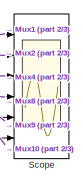
[diagram: root canvas - part 1/3, top right region]
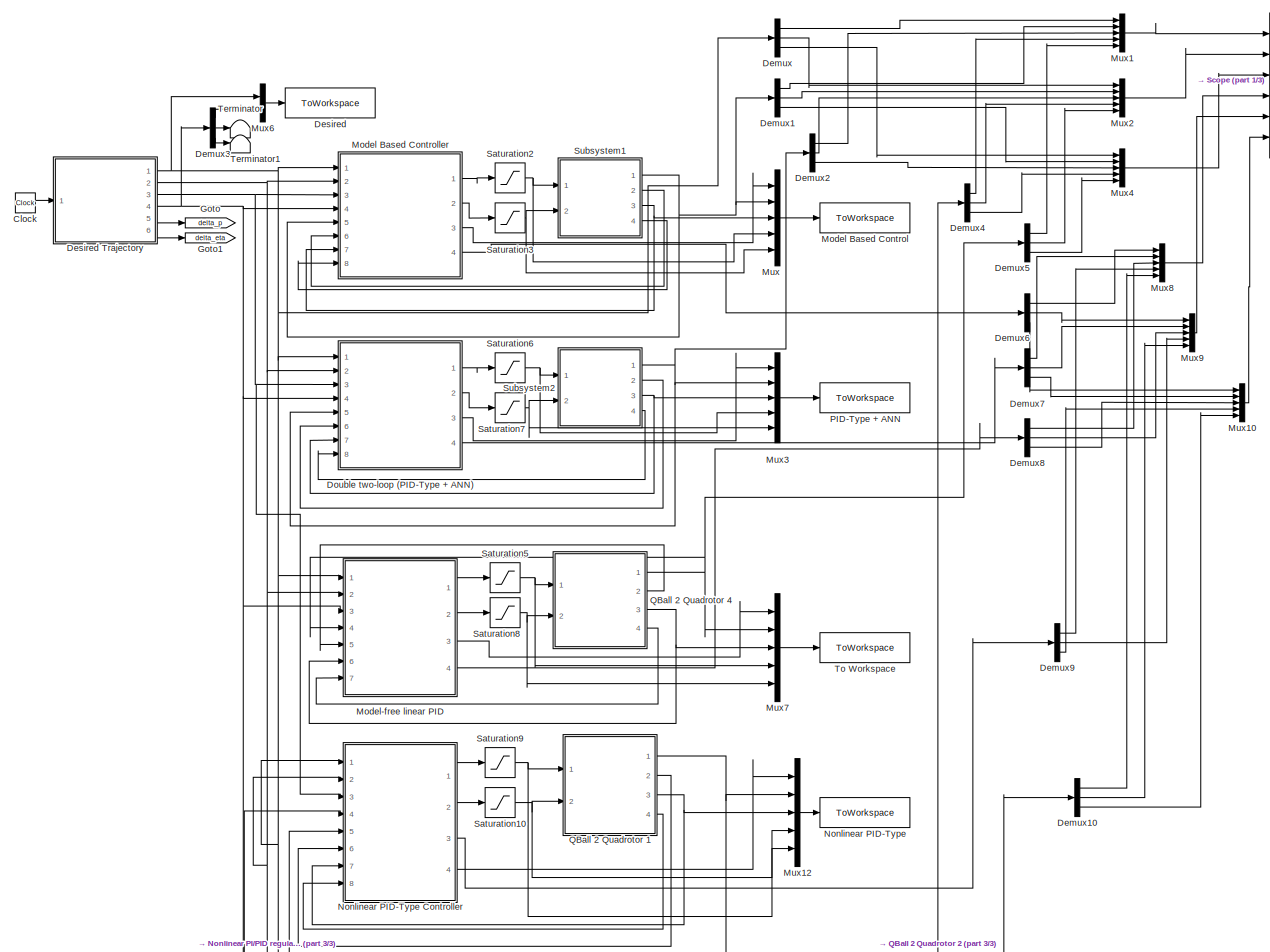
[diagram: root canvas - part 2/3, most of the canvas]
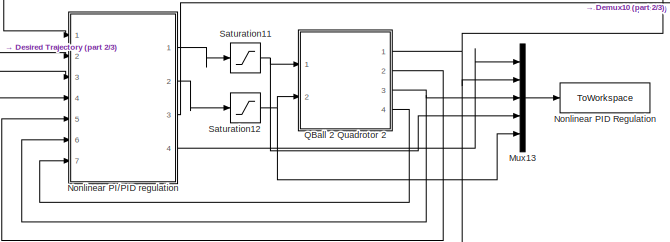
[diagram: root canvas - part 3/3, bottom center region]
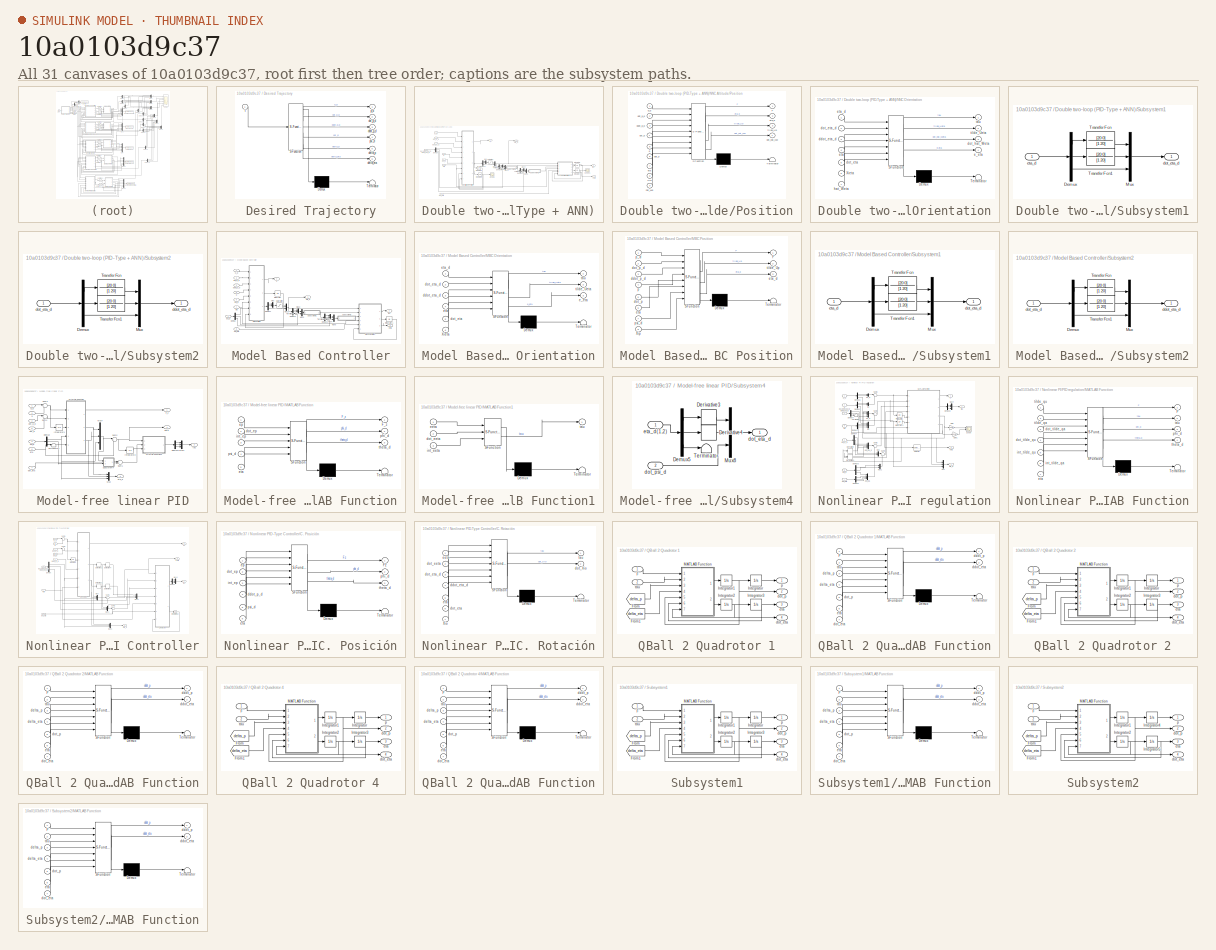
[diagram: thumbnail index - all 31 canvases of the model, root first then tree order]
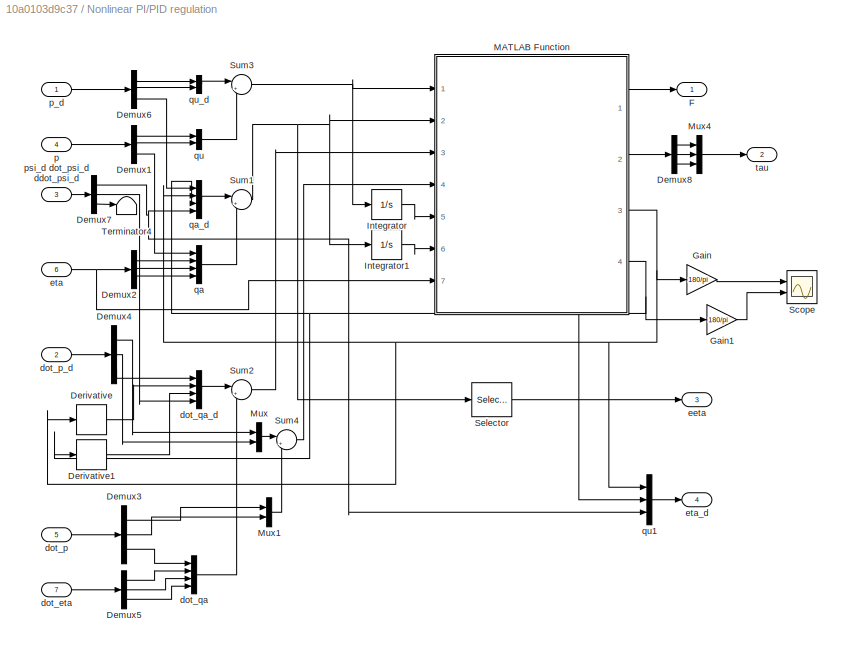
MODEL slx_10a0103d9c37
KIND model
CONFIG AbsTol = auto
CONFIG EnableMultiTasking = off
CONFIG FixedStep = 1e-3
CONFIG MaxStep = auto
CONFIG MinStep = auto
CONFIG RelTol = 1e-3
CONFIG SampleTimeConstraint = Unconstrained
CONFIG SolverName = ode4
CONFIG StartTime = 0.0
CONFIG StopTime = 60
BLOCK [Clock] Clock
BLOCK [Demux] Demux
  Outputs = 3
  Ports = [1, 3]
BLOCK [Demux] Demux1
  Outputs = 3
  Ports = [1, 3]
BLOCK [Demux] Demux10
  Outputs = 3
  Ports = [1, 3]
BLOCK [Demux] Demux2
  Outputs = 3
  Ports = [1, 3]
BLOCK [Demux] Demux3
  Outputs = 3
  Ports = [1, 3]
BLOCK [Demux] Demux4
  Outputs = 3
  Ports = [1, 3]
BLOCK [Demux] Demux5
  Outputs = 3
  Ports = [1, 3]
BLOCK [Demux] Demux6
  Outputs = 3
  Ports = [1, 3]
BLOCK [Demux] Demux7
  Outputs = 3
  Ports = [1, 3]
BLOCK [Demux] Demux8
  Outputs = 3
  Ports = [1, 3]
BLOCK [Demux] Demux9
  Outputs = 3
  Ports = [1, 3]
BLOCK [ToWorkspace] Desired
  FixptAsFi = on
  MaxDataPoints = inf
  Ports = [1]
  SampleTime = -1
  SaveFormat = Structure With Time
  VariableName = Desired
BLOCK [SubSystem] Desired Trajectory
  ErrorFcn = Stateflow.Translate.translate
  PermitHierarchicalResolution = ExplicitOnly
  Ports = [1, 6]
  RequestExecContextInheritance = off
  SFBlockType = MATLAB Function
  TreatAsAtomicUnit = on
BLOCK [Demux] Desired Trajectory/ Demux 
  Outputs = 1
  Ports = [1, 1]
BLOCK [S-Function] Desired Trajectory/ SFunction 
  EnableBusSupport = on
  FunctionName = sf_sfun
  PortCounts = [1 7]
  Ports = [1, 7]
  SFcnIsStateOwnerBlock = off
  SFunctionDeploymentMode = off
  Tag = Stateflow S-Function 4
BLOCK [Terminator] Desired Trajectory/ Terminator 
BLOCK [Outport] Desired Trajectory/ddot_p_d
  Port = 3
BLOCK [Outport] Desired Trajectory/delta_eta
  Port = 6
BLOCK [Outport] Desired Trajectory/delta_p
  Port = 5
BLOCK [Outport] Desired Trajectory/dot_p_d
  Port = 2
BLOCK [Outport] Desired Trajectory/p_d
BLOCK [Outport] Desired Trajectory/psi_d
  Port = 4
BLOCK [Inport] Desired Trajectory/t
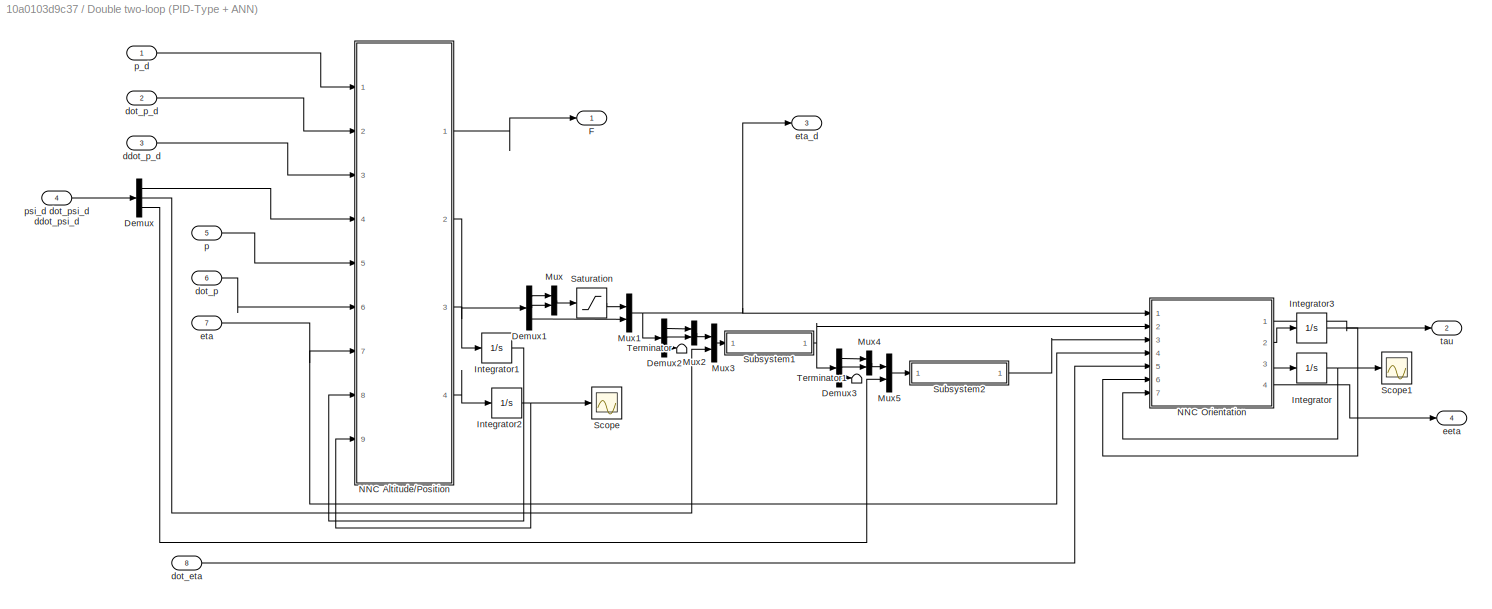
BLOCK [SubSystem] Double two-loop (PID-Type + ANN)
  Ports = [8, 4]
  RequestExecContextInheritance = off
BLOCK [Demux] Double two-loop (PID-Type + ANN)/Demux
  Outputs = 3
  Ports = [1, 3]
BLOCK [Demux] Double two-loop (PID-Type + ANN)/Demux1
  Outputs = 3
  Ports = [1, 3]
BLOCK [Demux] Double two-loop (PID-Type + ANN)/Demux2
  Outputs = 3
  Ports = [1, 3]
BLOCK [Demux] Double two-loop (PID-Type + ANN)/Demux3
  Outputs = 3
  Ports = [1, 3]
BLOCK [Outport] Double two-loop (PID-Type + ANN)/F
BLOCK [Integrator] Double two-loop (PID-Type + ANN)/Integrator
  InitialCondition = zeros(10,3)
  Ports = [1, 1]
BLOCK [Integrator] Double two-loop (PID-Type + ANN)/Integrator1
  InitialCondition = [0;0;0]
  Ports = [1, 1]
BLOCK [Integrator] Double two-loop (PID-Type + ANN)/Integrator2
  InitialCondition = zeros(10,3)
  Ports = [1, 1]
BLOCK [Integrator] Double two-loop (PID-Type + ANN)/Integrator3
  InitialCondition = [0;0;0]
  Ports = [1, 1]
BLOCK [Mux] Double two-loop (PID-Type + ANN)/Mux
  DisplayOption = bar
  Inputs = 2
  Ports = [2, 1]
BLOCK [Mux] Double two-loop (PID-Type + ANN)/Mux1
  DisplayOption = bar
  Inputs = 2
  Ports = [2, 1]
BLOCK [Mux] Double two-loop (PID-Type + ANN)/Mux2
  DisplayOption = bar
  Inputs = 2
  Ports = [2, 1]
BLOCK [Mux] Double two-loop (PID-Type + ANN)/Mux3
  DisplayOption = bar
  Inputs = 2
  Ports = [2, 1]
BLOCK [Mux] Double two-loop (PID-Type + ANN)/Mux4
  DisplayOption = bar
  Inputs = 2
  Ports = [2, 1]
BLOCK [Mux] Double two-loop (PID-Type + ANN)/Mux5
  DisplayOption = bar
  Inputs = 2
  Ports = [2, 1]
BLOCK [SubSystem] Double two-loop (PID-Type + ANN)/NNC Altitude//Position
  ErrorFcn = Stateflow.Translate.translate
  PermitHierarchicalResolution = ExplicitOnly
  Ports = [9, 4]
  RequestExecContextInheritance = off
  SFBlockType = MATLAB Function
  TreatAsAtomicUnit = on
BLOCK [Demux] Double two-loop (PID-Type + ANN)/NNC Altitude//Position/ Demux 
  Outputs = 1
  Ports = [1, 1]
BLOCK [S-Function] Double two-loop (PID-Type + ANN)/NNC Altitude//Position/ SFunction 
  EnableBusSupport = on
  FunctionName = sf_sfun
  PortCounts = [9 5]
  Ports = [9, 5]
  SFcnIsStateOwnerBlock = off
  SFunctionDeploymentMode = off
  Tag = Stateflow S-Function 11
BLOCK [Terminator] Double two-loop (PID-Type + ANN)/NNC Altitude//Position/ Terminator 
BLOCK [Outport] Double two-loop (PID-Type + ANN)/NNC Altitude//Position/F
BLOCK [Inport] Double two-loop (PID-Type + ANN)/NNC Altitude//Position/Xip
  Port = 8
BLOCK [Inport] Double two-loop (PID-Type + ANN)/NNC Altitude//Position/ddot_p_d
  Port = 3
BLOCK [Outport] Double two-loop (PID-Type + ANN)/NNC Altitude//Position/dot_hat_Wp
  Port = 4
BLOCK [Inport] Double two-loop (PID-Type + ANN)/NNC Altitude//Position/dot_p
  Port = 6
BLOCK [Inport] Double two-loop (PID-Type + ANN)/NNC Altitude//Position/dot_p_d
  Port = 2
BLOCK [Inport] Double two-loop (PID-Type + ANN)/NNC Altitude//Position/eta
  Port = 7
BLOCK [Outport] Double two-loop (PID-Type + ANN)/NNC Altitude//Position/eta_d
  Port = 2
BLOCK [Inport] Double two-loop (PID-Type + ANN)/NNC Altitude//Position/hat_Wp
  Port = 9
BLOCK [Inport] Double two-loop (PID-Type + ANN)/NNC Altitude//Position/p
  Port = 5
BLOCK [Inport] Double two-loop (PID-Type + ANN)/NNC Altitude//Position/p_d
BLOCK [Inport] Double two-loop (PID-Type + ANN)/NNC Altitude//Position/psi_d
  Port = 4
BLOCK [Outport] Double two-loop (PID-Type + ANN)/NNC Altitude//Position/tilde_Up
  Port = 3
BLOCK [SubSystem] Double two-loop (PID-Type + ANN)/NNC Orientation
  ErrorFcn = Stateflow.Translate.translate
  PermitHierarchicalResolution = ExplicitOnly
  Ports = [7, 4]
  RequestExecContextInheritance = off
  SFBlockType = MATLAB Function
  TreatAsAtomicUnit = on
BLOCK [Demux] Double two-loop (PID-Type + ANN)/NNC Orientation/ Demux 
  Outputs = 1
  Ports = [1, 1]
BLOCK [S-Function] Double two-loop (PID-Type + ANN)/NNC Orientation/ SFunction 
  EnableBusSupport = on
  FunctionName = sf_sfun
  PortCounts = [7 5]
  Ports = [7, 5]
  SFcnIsStateOwnerBlock = off
  SFunctionDeploymentMode = off
  Tag = Stateflow S-Function 12
BLOCK [Terminator] Double two-loop (PID-Type + ANN)/NNC Orientation/ Terminator 
BLOCK [Inport] Double two-loop (PID-Type + ANN)/NNC Orientation/Xieta
  Port = 6
BLOCK [Inport] Double two-loop (PID-Type + ANN)/NNC Orientation/ddot_eta_d
  Port = 3
BLOCK [Inport] Double two-loop (PID-Type + ANN)/NNC Orientation/dot_eta
  Port = 5
BLOCK [Inport] Double two-loop (PID-Type + ANN)/NNC Orientation/dot_eta_d
  Port = 2
BLOCK [Outport] Double two-loop (PID-Type + ANN)/NNC Orientation/dot_hat_Weta
  Port = 3
BLOCK [Outport] Double two-loop (PID-Type + ANN)/NNC Orientation/e_eta
  Port = 4
BLOCK [Inport] Double two-loop (PID-Type + ANN)/NNC Orientation/eta
  Port = 4
BLOCK [Inport] Double two-loop (PID-Type + ANN)/NNC Orientation/eta_d
BLOCK [Inport] Double two-loop (PID-Type + ANN)/NNC Orientation/hat_Weta
  Port = 7
BLOCK [Outport] Double two-loop (PID-Type + ANN)/NNC Orientation/tau
BLOCK [Outport] Double two-loop (PID-Type + ANN)/NNC Orientation/tilde_Ueta
  Port = 2
BLOCK [Saturate] Double two-loop (PID-Type + ANN)/Saturation
  LowerLimit = -20*pi/180
  UpperLimit = 20*pi/180
BLOCK [Scope] Double two-loop (PID-Type + ANN)/Scope
  Floating = off
  NumInputPorts = 1
  Ports = [1]
  ScopeSpecificationString = Simulink.scopes.TimeScopeBlockCfg('CurrentConfiguration', extmgr.ConfigurationSet(extmgr.Configuration('Core','General UI',true),extmgr.Configuration('Core','Source UI',true),extmgr.Configuration('Sources','WiredSimulink',true),extmgr.Configuration('Visuals','Time Domain',true,'SerializedDisplays',{struct('MinYLimReal','-0.42215','MaxYLimReal','0.43731','YLabelReal','','MinYLimMag','0.00000','MaxY...<+1847ch>
BLOCK [Scope] Double two-loop (PID-Type + ANN)/Scope1
  Floating = off
  NumInputPorts = 1
  Ports = [1]
  ScopeSpecificationString = Simulink.scopes.TimeScopeBlockCfg('CurrentConfiguration', extmgr.ConfigurationSet(extmgr.Configuration('Core','General UI',true),extmgr.Configuration('Core','Source UI',true),extmgr.Configuration('Sources','WiredSimulink',true,'DataLoggingVariableName','ScopeData1'),extmgr.Configuration('Visuals','Time Domain',true,'SerializedDisplays',{struct('MinYLimReal','-0.40705','MaxYLimReal','0.40572','YLab...<+1891ch>
BLOCK [SubSystem] Double two-loop (PID-Type + ANN)/Subsystem1
  Ports = [1, 1]
  RequestExecContextInheritance = off
BLOCK [Demux] Double two-loop (PID-Type + ANN)/Subsystem1/Demux
  Outputs = 3
  Ports = [1, 3]
BLOCK [Mux] Double two-loop (PID-Type + ANN)/Subsystem1/Mux
  DisplayOption = bar
  Inputs = 3
  Ports = [3, 1]
BLOCK [TransferFcn] Double two-loop (PID-Type + ANN)/Subsystem1/Transfer Fcn
  Denominator = [1 20]
  Numerator = [20 0]
BLOCK [TransferFcn] Double two-loop (PID-Type + ANN)/Subsystem1/Transfer Fcn1
  Denominator = [1 20]
  Numerator = [20 0]
BLOCK [Outport] Double two-loop (PID-Type + ANN)/Subsystem1/dot_eta_d
BLOCK [Inport] Double two-loop (PID-Type + ANN)/Subsystem1/eta_d
  NameLocation = top
BLOCK [SubSystem] Double two-loop (PID-Type + ANN)/Subsystem2
  Ports = [1, 1]
  RequestExecContextInheritance = off
BLOCK [Demux] Double two-loop (PID-Type + ANN)/Subsystem2/Demux
  Outputs = 3
  Ports = [1, 3]
BLOCK [Mux] Double two-loop (PID-Type + ANN)/Subsystem2/Mux
  DisplayOption = bar
  Inputs = 3
  Ports = [3, 1]
BLOCK [TransferFcn] Double two-loop (PID-Type + ANN)/Subsystem2/Transfer Fcn
  Denominator = [1 20]
  Numerator = [20 0]
BLOCK [TransferFcn] Double two-loop (PID-Type + ANN)/Subsystem2/Transfer Fcn1
  Denominator = [1 20]
  Numerator = [20 0]
BLOCK [Outport] Double two-loop (PID-Type + ANN)/Subsystem2/ddot_eta_d
BLOCK [Inport] Double two-loop (PID-Type + ANN)/Subsystem2/dot_eta_d
  NameLocation = top
BLOCK [Terminator] Double two-loop (PID-Type + ANN)/Terminator
BLOCK [Terminator] Double two-loop (PID-Type + ANN)/Terminator1
BLOCK [Inport] Double two-loop (PID-Type + ANN)/ddot_p_d
  Port = 3
BLOCK [Inport] Double two-loop (PID-Type + ANN)/dot_eta
  Port = 8
BLOCK [Inport] Double two-loop (PID-Type + ANN)/dot_p
  Port = 6
BLOCK [Inport] Double two-loop (PID-Type + ANN)/dot_p_d
  Port = 2
BLOCK [Outport] Double two-loop (PID-Type + ANN)/eeta
  Port = 4
BLOCK [Inport] Double two-loop (PID-Type + ANN)/eta
  Port = 7
BLOCK [Outport] Double two-loop (PID-Type + ANN)/eta_d
  Port = 3
BLOCK [Inport] Double two-loop (PID-Type + ANN)/p
  Port = 5
BLOCK [Inport] Double two-loop (PID-Type + ANN)/p_d
  NameLocation = top
BLOCK [Inport] Double two-loop (PID-Type + ANN)/psi_d dot_psi_d ddot_psi_d
  Port = 4
BLOCK [Outport] Double two-loop (PID-Type + ANN)/tau
  Port = 2
BLOCK [Goto] Goto
  GotoTag = delta_p
  TagVisibility = global
BLOCK [Goto] Goto1
  GotoTag = delta_eta
  TagVisibility = global
BLOCK [ToWorkspace] Model Based Control
  FixptAsFi = on
  MaxDataPoints = inf
  Ports = [1]
  SampleTime = -1
  SaveFormat = Structure With Time
  VariableName = MBC
BLOCK [SubSystem] Model Based Controller
  Ports = [8, 4]
  RequestExecContextInheritance = off
BLOCK [Demux] Model Based Controller/Demux
  Outputs = 3
  Ports = [1, 3]
BLOCK [Demux] Model Based Controller/Demux1
  Outputs = 3
  Ports = [1, 3]
BLOCK [Demux] Model Based Controller/Demux2
  Outputs = 3
  Ports = [1, 3]
BLOCK [Demux] Model Based Controller/Demux3
  Outputs = 3
  Ports = [1, 3]
BLOCK [Outport] Model Based Controller/F
BLOCK [Integrator] Model Based Controller/Integrator
  InitialCondition = [0;0;0]
  Ports = [1, 1]
BLOCK [Integrator] Model Based Controller/Integrator1
  InitialCondition = [0;0;0]
  Ports = [1, 1]
BLOCK [SubSystem] Model Based Controller/MBC Orientation
  ErrorFcn = Stateflow.Translate.translate
  PermitHierarchicalResolution = ExplicitOnly
  Ports = [6, 3]
  RequestExecContextInheritance = off
  SFBlockType = MATLAB Function
  TreatAsAtomicUnit = on
BLOCK [Demux] Model Based Controller/MBC Orientation/ Demux 
  Outputs = 1
  Ports = [1, 1]
BLOCK [S-Function] Model Based Controller/MBC Orientation/ SFunction 
  EnableBusSupport = on
  FunctionName = sf_sfun
  PortCounts = [6 4]
  Ports = [6, 4]
  SFcnIsStateOwnerBlock = off
  SFunctionDeploymentMode = off
  Tag = Stateflow S-Function 1
BLOCK [Terminator] Model Based Controller/MBC Orientation/ Terminator 
BLOCK [Inport] Model Based Controller/MBC Orientation/Xieta
  Port = 6
BLOCK [Inport] Model Based Controller/MBC Orientation/ddot_eta_d
  Port = 3
BLOCK [Inport] Model Based Controller/MBC Orientation/dot_eta
  Port = 5
BLOCK [Inport] Model Based Controller/MBC Orientation/dot_eta_d
  Port = 2
BLOCK [Outport] Model Based Controller/MBC Orientation/e_eta
  Port = 3
BLOCK [Inport] Model Based Controller/MBC Orientation/eta
  Port = 4
BLOCK [Inport] Model Based Controller/MBC Orientation/eta_d
BLOCK [Outport] Model Based Controller/MBC Orientation/tau
BLOCK [Outport] Model Based Controller/MBC Orientation/tilde_Ueta
  Port = 2
BLOCK [SubSystem] Model Based Controller/MBC Position
  ErrorFcn = Stateflow.Translate.translate
  PermitHierarchicalResolution = ExplicitOnly
  Ports = [8, 3]
  RequestExecContextInheritance = off
  SFBlockType = MATLAB Function
  TreatAsAtomicUnit = on
BLOCK [Demux] Model Based Controller/MBC Position/ Demux 
  Outputs = 1
  Ports = [1, 1]
BLOCK [S-Function] Model Based Controller/MBC Position/ SFunction 
  EnableBusSupport = on
  FunctionName = sf_sfun
  PortCounts = [8 4]
  Ports = [8, 4]
  SFcnIsStateOwnerBlock = off
  SFunctionDeploymentMode = off
  Tag = Stateflow S-Function 3
BLOCK [Terminator] Model Based Controller/MBC Position/ Terminator 
BLOCK [Outport] Model Based Controller/MBC Position/F
BLOCK [Inport] Model Based Controller/MBC Position/Xip
  Port = 8
BLOCK [Inport] Model Based Controller/MBC Position/ddot_p_d
  Port = 3
BLOCK [Inport] Model Based Controller/MBC Position/dot_p
  Port = 5
BLOCK [Inport] Model Based Controller/MBC Position/dot_p_d
  Port = 2
BLOCK [Inport] Model Based Controller/MBC Position/eta
  Port = 6
BLOCK [Outport] Model Based Controller/MBC Position/eta_d
  Port = 3
BLOCK [Inport] Model Based Controller/MBC Position/p
  Port = 4
BLOCK [Inport] Model Based Controller/MBC Position/p_d
BLOCK [Inport] Model Based Controller/MBC Position/psi_d
  Port = 7
BLOCK [Outport] Model Based Controller/MBC Position/tilde_Up
  Port = 2
BLOCK [Mux] Model Based Controller/Mux
  DisplayOption = bar
  Inputs = 2
  Ports = [2, 1]
BLOCK [Mux] Model Based Controller/Mux1
  DisplayOption = bar
  Inputs = 2
  Ports = [2, 1]
BLOCK [Mux] Model Based Controller/Mux2
  DisplayOption = bar
  Inputs = 2
  Ports = [2, 1]
BLOCK [Mux] Model Based Controller/Mux3
  DisplayOption = bar
  Inputs = 2
  Ports = [2, 1]
BLOCK [Mux] Model Based Controller/Mux4
  DisplayOption = bar
  Inputs = 2
  Ports = [2, 1]
BLOCK [Mux] Model Based Controller/Mux5
  DisplayOption = bar
  Inputs = 2
  Ports = [2, 1]
BLOCK [Saturate] Model Based Controller/Saturation
  LowerLimit = -20*pi/180
  UpperLimit = 20*pi/180
BLOCK [SubSystem] Model Based Controller/Subsystem1
  Ports = [1, 1]
  RequestExecContextInheritance = off
BLOCK [Demux] Model Based Controller/Subsystem1/Demux
  Outputs = 3
  Ports = [1, 3]
BLOCK [Mux] Model Based Controller/Subsystem1/Mux
  DisplayOption = bar
  Inputs = 3
  Ports = [3, 1]
BLOCK [TransferFcn] Model Based Controller/Subsystem1/Transfer Fcn
  Denominator = [1 20]
  Numerator = [20 0]
BLOCK [TransferFcn] Model Based Controller/Subsystem1/Transfer Fcn1
  Denominator = [1 20]
  Numerator = [20 0]
BLOCK [Outport] Model Based Controller/Subsystem1/dot_eta_d
BLOCK [Inport] Model Based Controller/Subsystem1/eta_d
  NameLocation = top
BLOCK [SubSystem] Model Based Controller/Subsystem2
  Ports = [1, 1]
  RequestExecContextInheritance = off
BLOCK [Demux] Model Based Controller/Subsystem2/Demux
  Outputs = 3
  Ports = [1, 3]
BLOCK [Mux] Model Based Controller/Subsystem2/Mux
  DisplayOption = bar
  Inputs = 3
  Ports = [3, 1]
BLOCK [TransferFcn] Model Based Controller/Subsystem2/Transfer Fcn
  Denominator = [1 20]
  Numerator = [20 0]
BLOCK [TransferFcn] Model Based Controller/Subsystem2/Transfer Fcn1
  Denominator = [1 20]
  Numerator = [20 0]
BLOCK [Outport] Model Based Controller/Subsystem2/ddot_eta_d
BLOCK [Inport] Model Based Controller/Subsystem2/dot_eta_d
  NameLocation = top
BLOCK [Terminator] Model Based Controller/Terminator
BLOCK [Terminator] Model Based Controller/Terminator1
BLOCK [Inport] Model Based Controller/ddot_p_d
  Port = 3
BLOCK [Inport] Model Based Controller/dot_eta
  Port = 8
BLOCK [Inport] Model Based Controller/dot_p
  Port = 6
BLOCK [Inport] Model Based Controller/dot_p_d
  Port = 2
BLOCK [Outport] Model Based Controller/eeta
  Port = 4
BLOCK [Inport] Model Based Controller/eta
  Port = 7
BLOCK [Outport] Model Based Controller/eta_d
  Port = 3
BLOCK [Inport] Model Based Controller/p
  Port = 5
BLOCK [Inport] Model Based Controller/p_d
BLOCK [Inport] Model Based Controller/psi_d
  Port = 4
BLOCK [Outport] Model Based Controller/tau
  Port = 2
BLOCK [SubSystem] Model-free linear PID
  Ports = [7, 4]
  RequestExecContextInheritance = off
BLOCK [Demux] Model-free linear PID/Demux
  Outputs = 3
  Ports = [1, 3]
BLOCK [Demux] Model-free linear PID/Demux1
  Outputs = 3
  Ports = [1, 3]
BLOCK [Outport] Model-free linear PID/F_z
BLOCK [Integrator] Model-free linear PID/Integrator1
  InitialCondition = [0;0;0]
  Ports = [1, 1]
BLOCK [Integrator] Model-free linear PID/Integrator2
  InitialCondition = [0;0;0]
  Ports = [1, 1]
BLOCK [SubSystem] Model-free linear PID/MATLAB Function
  ErrorFcn = Stateflow.Translate.translate
  PermitHierarchicalResolution = ExplicitOnly
  Ports = [5, 3]
  RequestExecContextInheritance = off
  SFBlockType = MATLAB Function
  TreatAsAtomicUnit = on
BLOCK [Demux] Model-free linear PID/MATLAB Function/ Demux 
  Outputs = 1
  Ports = [1, 1]
BLOCK [S-Function] Model-free linear PID/MATLAB Function/ SFunction 
  EnableBusSupport = on
  FunctionName = sf_sfun
  PortCounts = [5 4]
  Ports = [5, 4]
  SFcnIsStateOwnerBlock = off
  SFunctionDeploymentMode = off
  Tag = Stateflow S-Function 10
BLOCK [Terminator] Model-free linear PID/MATLAB Function/ Terminator 
BLOCK [Outport] Model-free linear PID/MATLAB Function/F_z
BLOCK [Inport] Model-free linear PID/MATLAB Function/dot_ep
  Port = 2
BLOCK [Inport] Model-free linear PID/MATLAB Function/ep
BLOCK [Inport] Model-free linear PID/MATLAB Function/eta
  Port = 5
BLOCK [Inport] Model-free linear PID/MATLAB Function/int_ep
  Port = 3
BLOCK [Outport] Model-free linear PID/MATLAB Function/phi_d
  Port = 2
BLOCK [Inport] Model-free linear PID/MATLAB Function/psi_d
  Port = 4
BLOCK [Outport] Model-free linear PID/MATLAB Function/theta_d
  Port = 3
BLOCK [SubSystem] Model-free linear PID/MATLAB Function1
  ErrorFcn = Stateflow.Translate.translate
  PermitHierarchicalResolution = ExplicitOnly
  Ports = [3, 1]
  RequestExecContextInheritance = off
  SFBlockType = MATLAB Function
  TreatAsAtomicUnit = on
BLOCK [Demux] Model-free linear PID/MATLAB Function1/ Demux 
  Outputs = 1
  Ports = [1, 1]
BLOCK [S-Function] Model-free linear PID/MATLAB Function1/ SFunction 
  EnableBusSupport = on
  FunctionName = sf_sfun
  PortCounts = [3 2]
  Ports = [3, 2]
  SFcnIsStateOwnerBlock = off
  SFunctionDeploymentMode = off
  Tag = Stateflow S-Function 14
BLOCK [Terminator] Model-free linear PID/MATLAB Function1/ Terminator 
BLOCK [Inport] Model-free linear PID/MATLAB Function1/dot_eeta
  Port = 2
BLOCK [Inport] Model-free linear PID/MATLAB Function1/eeta
BLOCK [Inport] Model-free linear PID/MATLAB Function1/int_eeta
  Port = 3
BLOCK [Outport] Model-free linear PID/MATLAB Function1/tau
BLOCK [Mux] Model-free linear PID/Mux
  DisplayOption = bar
  Inputs = 3
  Ports = [3, 1]
BLOCK [Mux] Model-free linear PID/Mux1
  DisplayOption = bar
  Inputs = 3
  Ports = [3, 1]
BLOCK [Mux] Model-free linear PID/Mux7
  DisplayOption = bar
  Inputs = 3
  Ports = [3, 1]
BLOCK [SubSystem] Model-free linear PID/Subsystem4
  Ports = [2, 1]
  RequestExecContextInheritance = off
BLOCK [Demux] Model-free linear PID/Subsystem4/Demux5
  Outputs = 3
  Ports = [1, 3]
BLOCK [Derivative] Model-free linear PID/Subsystem4/Derivative3
BLOCK [Derivative] Model-free linear PID/Subsystem4/Derivative4
BLOCK [Mux] Model-free linear PID/Subsystem4/Mux8
  DisplayOption = bar
  Inputs = 3
  Ports = [3, 1]
BLOCK [Terminator] Model-free linear PID/Subsystem4/Terminator
BLOCK [Outport] Model-free linear PID/Subsystem4/dot_eta_d
BLOCK [Inport] Model-free linear PID/Subsystem4/dot_psi_d
  Port = 2
BLOCK [Inport] Model-free linear PID/Subsystem4/eta_d(1,2)
BLOCK [Sum] Model-free linear PID/Sum1
  Inputs = |+-
  Ports = [2, 1]
BLOCK [Sum] Model-free linear PID/Sum2
  Inputs = |+-
  Ports = [2, 1]
BLOCK [Sum] Model-free linear PID/Sum3
  Inputs = |+-
  Ports = [2, 1]
BLOCK [Sum] Model-free linear PID/Sum4
  Inputs = |+-
  Ports = [2, 1]
BLOCK [Terminator] Model-free linear PID/Terminator1
BLOCK [Inport] Model-free linear PID/dot_eta
  Port = 7
BLOCK [Inport] Model-free linear PID/dot_p
  Port = 5
BLOCK [Inport] Model-free linear PID/dot_p_d
  Port = 2
BLOCK [Outport] Model-free linear PID/eeta
  Port = 4
BLOCK [Inport] Model-free linear PID/eta
  Port = 6
BLOCK [Outport] Model-free linear PID/eta_d
  Port = 3
BLOCK [Inport] Model-free linear PID/p
  Port = 4
BLOCK [Inport] Model-free linear PID/p_d
BLOCK [Inport] Model-free linear PID/psi_d
  Port = 3
BLOCK [Outport] Model-free linear PID/tau
  Port = 2
BLOCK [Mux] Mux
  DisplayOption = bar
  Inputs = 5
  Ports = [5, 1]
BLOCK [Mux] Mux1
  DisplayOption = bar
  Inputs = 5
  Ports = [5, 1]
BLOCK [Mux] Mux10
  DisplayOption = bar
  Inputs = 5
  Ports = [5, 1]
BLOCK [Mux] Mux12
  DisplayOption = bar
  Inputs = 5
  Ports = [5, 1]
BLOCK [Mux] Mux13
  DisplayOption = bar
  Inputs = 5
  Ports = [5, 1]
BLOCK [Mux] Mux2
  DisplayOption = bar
  Inputs = 5
  Ports = [5, 1]
BLOCK [Mux] Mux3
  DisplayOption = bar
  Inputs = 5
  Ports = [5, 1]
BLOCK [Mux] Mux4
  DisplayOption = bar
  Inputs = 5
  Ports = [5, 1]
BLOCK [Mux] Mux6
  DisplayOption = bar
  Inputs = 2
  Ports = [2, 1]
BLOCK [Mux] Mux7
  DisplayOption = bar
  Inputs = 5
  Ports = [5, 1]
BLOCK [Mux] Mux8
  DisplayOption = bar
  Inputs = 5
  Ports = [5, 1]
BLOCK [Mux] Mux9
  DisplayOption = bar
  Inputs = 5
  Ports = [5, 1]
BLOCK [SubSystem] Nonlinear PI//PID regulation
  Ports = [7, 4]
  RequestExecContextInheritance = off
BLOCK [Demux] Nonlinear PI//PID regulation/Demux1
  Outputs = 3
  Ports = [1, 3]
BLOCK [Demux] Nonlinear PI//PID regulation/Demux2
  Outputs = 3
  Ports = [1, 3]
BLOCK [Demux] Nonlinear PI//PID regulation/Demux3
  Outputs = 3
  Ports = [1, 3]
BLOCK [Demux] Nonlinear PI//PID regulation/Demux4
  Outputs = 3
  Ports = [1, 3]
BLOCK [Demux] Nonlinear PI//PID regulation/Demux5
  Outputs = 3
  Ports = [1, 3]
BLOCK [Demux] Nonlinear PI//PID regulation/Demux6
  Outputs = 3
  Ports = [1, 3]
BLOCK [Demux] Nonlinear PI//PID regulation/Demux7
  Outputs = 3
  Ports = [1, 3]
BLOCK [Demux] Nonlinear PI//PID regulation/Demux8
  Outputs = 3
  Ports = [1, 3]
BLOCK [Derivative] Nonlinear PI//PID regulation/Derivative
BLOCK [Derivative] Nonlinear PI//PID regulation/Derivative1
BLOCK [Outport] Nonlinear PI//PID regulation/F
BLOCK [Gain] Nonlinear PI//PID regulation/Gain
  Gain = 180/pi
BLOCK [Gain] Nonlinear PI//PID regulation/Gain1
  Gain = 180/pi
BLOCK [Integrator] Nonlinear PI//PID regulation/Integrator
  InitialCondition = [0; 0]
  Ports = [1, 1]
BLOCK [Integrator] Nonlinear PI//PID regulation/Integrator1
  InitialCondition = [0; 0; 0; 0]
  Ports = [1, 1]
BLOCK [SubSystem] Nonlinear PI//PID regulation/MATLAB Function
  ErrorFcn = Stateflow.Translate.translate
  PermitHierarchicalResolution = ExplicitOnly
  Ports = [7, 4]
  RequestExecContextInheritance = off
  SFBlockType = MATLAB Function
  TreatAsAtomicUnit = on
BLOCK [Demux] Nonlinear PI//PID regulation/MATLAB Function/ Demux 
  Outputs = 1
  Ports = [1, 1]
BLOCK [S-Function] Nonlinear PI//PID regulation/MATLAB Function/ SFunction 
  EnableBusSupport = on
  FunctionName = sf_sfun
  PortCounts = [7 5]
  Ports = [7, 5]
  SFcnIsStateOwnerBlock = off
  SFunctionDeploymentMode = off
  Tag = Stateflow S-Function 17
BLOCK [Terminator] Nonlinear PI//PID regulation/MATLAB Function/ Terminator 
BLOCK [Outport] Nonlinear PI//PID regulation/MATLAB Function/F
BLOCK [Inport] Nonlinear PI//PID regulation/MATLAB Function/dot_tilde_qa
  Port = 3
BLOCK [Inport] Nonlinear PI//PID regulation/MATLAB Function/dot_tilde_qu
  Port = 4
BLOCK [Inport] Nonlinear PI//PID regulation/MATLAB Function/eta
  Port = 7
BLOCK [Inport] Nonlinear PI//PID regulation/MATLAB Function/int_tilde_qa
  Port = 6
BLOCK [Inport] Nonlinear PI//PID regulation/MATLAB Function/int_tilde_qu
  Port = 5
BLOCK [Outport] Nonlinear PI//PID regulation/MATLAB Function/phi_d
  Port = 3
BLOCK [Outport] Nonlinear PI//PID regulation/MATLAB Function/tau
  Port = 2
BLOCK [Outport] Nonlinear PI//PID regulation/MATLAB Function/theta_d
  Port = 4
BLOCK [Inport] Nonlinear PI//PID regulation/MATLAB Function/tilde_qa
  Port = 2
BLOCK [Inport] Nonlinear PI//PID regulation/MATLAB Function/tilde_qu
BLOCK [Mux] Nonlinear PI//PID regulation/Mux
  DisplayOption = bar
  Inputs = 2
  Ports = [2, 1]
BLOCK [Mux] Nonlinear PI//PID regulation/Mux1
  DisplayOption = bar
  Inputs = 2
  Ports = [2, 1]
BLOCK [Mux] Nonlinear PI//PID regulation/Mux4
  DisplayOption = bar
  Inputs = 3
  Ports = [3, 1]
BLOCK [Scope] Nonlinear PI//PID regulation/Scope
  Floating = off
  NumInputPorts = 2
  Ports = [2]
  ScopeSpecificationString = Simulink.scopes.TimeScopeBlockCfg('CurrentConfiguration', extmgr.ConfigurationSet(extmgr.Configuration('Core','General UI',true),extmgr.Configuration('Core','Source UI',true),extmgr.Configuration('Sources','WiredSimulink',true,'DataLoggingVariableName','ScopeData2'),extmgr.Configuration('Visuals','Time Domain',true,'SerializedDisplays',{struct('MinYLimReal','-66.23973','MaxYLimReal','14.04089','YL...<+1951ch>
BLOCK [Selector] Nonlinear PI//PID regulation/Selector
  IndexOptions = Starting index (dialog)
  Indices = [2]
  InputPortWidth = 4
  OutputSizes = 3
  Ports = [1, 1]
BLOCK [Sum] Nonlinear PI//PID regulation/Sum1
  Inputs = |+-
  Ports = [2, 1]
BLOCK [Sum] Nonlinear PI//PID regulation/Sum2
  Inputs = |+-
  Ports = [2, 1]
BLOCK [Sum] Nonlinear PI//PID regulation/Sum3
  Inputs = |+-
  Ports = [2, 1]
BLOCK [Sum] Nonlinear PI//PID regulation/Sum4
  Inputs = |+-
  Ports = [2, 1]
BLOCK [Terminator] Nonlinear PI//PID regulation/Terminator4
BLOCK [Inport] Nonlinear PI//PID regulation/dot_eta
  Port = 7
BLOCK [Inport] Nonlinear PI//PID regulation/dot_p
  Port = 5
BLOCK [Inport] Nonlinear PI//PID regulation/dot_p_d
  Port = 2
BLOCK [Mux] Nonlinear PI//PID regulation/dot_qa
  DisplayOption = bar
  Ports = [4, 1]
BLOCK [Mux] Nonlinear PI//PID regulation/dot_qa_d
  DisplayOption = bar
  Ports = [4, 1]
BLOCK [Outport] Nonlinear PI//PID regulation/eeta
  Port = 3
BLOCK [Inport] Nonlinear PI//PID regulation/eta
  Port = 6
BLOCK [Outport] Nonlinear PI//PID regulation/eta_d
  Port = 4
BLOCK [Inport] Nonlinear PI//PID regulation/p
  Port = 4
BLOCK [Inport] Nonlinear PI//PID regulation/p_d
BLOCK [Inport] Nonlinear PI//PID regulation/psi_d dot_psi_d ddot_psi_d
  Port = 3
BLOCK [Mux] Nonlinear PI//PID regulation/qa
  DisplayOption = bar
  Ports = [4, 1]
BLOCK [Mux] Nonlinear PI//PID regulation/qa_d
  DisplayOption = bar
  Ports = [4, 1]
BLOCK [Mux] Nonlinear PI//PID regulation/qu
  DisplayOption = bar
  Inputs = 2
  Ports = [2, 1]
BLOCK [Mux] Nonlinear PI//PID regulation/qu1
  DisplayOption = bar
  Inputs = 3
  Ports = [3, 1]
BLOCK [Mux] Nonlinear PI//PID regulation/qu_d
  DisplayOption = bar
  Inputs = 2
  Ports = [2, 1]
BLOCK [Outport] Nonlinear PI//PID regulation/tau
  Port = 2
BLOCK [ToWorkspace] Nonlinear PID Regulation
  FixptAsFi = on
  MaxDataPoints = inf
  Ports = [1]
  SampleTime = -1
  SaveFormat = Structure With Time
  VariableName = NLPIDR
BLOCK [ToWorkspace] Nonlinear PID-Type
  FixptAsFi = on
  MaxDataPoints = inf
  Ports = [1]
  SampleTime = -1
  SaveFormat = Structure With Time
  VariableName = NLPIDT
BLOCK [SubSystem] Nonlinear PID-Type Controller
  Ports = [8, 4]
  RequestExecContextInheritance = off
BLOCK [SubSystem] Nonlinear PID-Type Controller/C. Posición
  ErrorFcn = Stateflow.Translate.translate
  PermitHierarchicalResolution = ExplicitOnly
  Ports = [6, 3]
  RequestExecContextInheritance = off
  SFBlockType = MATLAB Function
  TreatAsAtomicUnit = on
BLOCK [Demux] Nonlinear PID-Type Controller/C. Posición/ Demux 
  Outputs = 1
  Ports = [1, 1]
BLOCK [S-Function] Nonlinear PID-Type Controller/C. Posición/ SFunction 
  EnableBusSupport = on
  FunctionName = sf_sfun
  PortCounts = [6 4]
  Ports = [6, 4]
  SFcnIsStateOwnerBlock = off
  SFunctionDeploymentMode = off
  Tag = Stateflow S-Function 8
BLOCK [Terminator] Nonlinear PID-Type Controller/C. Posición/ Terminator 
BLOCK [Outport] Nonlinear PID-Type Controller/C. Posición/Fz
BLOCK [Inport] Nonlinear PID-Type Controller/C. Posición/ddot_p_d
  Port = 4
BLOCK [Inport] Nonlinear PID-Type Controller/C. Posición/dot_ep
  Port = 2
BLOCK [Inport] Nonlinear PID-Type Controller/C. Posición/ep
BLOCK [Inport] Nonlinear PID-Type Controller/C. Posición/eta
  Port = 6
BLOCK [Inport] Nonlinear PID-Type Controller/C. Posición/int_ep
  Port = 3
BLOCK [Outport] Nonlinear PID-Type Controller/C. Posición/phi_d
  Port = 2
BLOCK [Inport] Nonlinear PID-Type Controller/C. Posición/psi_d
  Port = 5
BLOCK [Outport] Nonlinear PID-Type Controller/C. Posición/theta_d
  Port = 3
BLOCK [SubSystem] Nonlinear PID-Type Controller/C. Rotación
  ErrorFcn = Stateflow.Translate.translate
  PermitHierarchicalResolution = ExplicitOnly
  Ports = [7, 2]
  RequestExecContextInheritance = off
  SFBlockType = MATLAB Function
  TreatAsAtomicUnit = on
BLOCK [Demux] Nonlinear PID-Type Controller/C. Rotación/ Demux 
  Outputs = 1
  Ports = [1, 1]
BLOCK [S-Function] Nonlinear PID-Type Controller/C. Rotación/ SFunction 
  EnableBusSupport = on
  FunctionName = sf_sfun
  PortCounts = [7 3]
  Ports = [7, 3]
  SFcnIsStateOwnerBlock = off
  SFunctionDeploymentMode = off
  Tag = Stateflow S-Function 9
BLOCK [Terminator] Nonlinear PID-Type Controller/C. Rotación/ Terminator 
BLOCK [Inport] Nonlinear PID-Type Controller/C. Rotación/Xio
  Port = 7
BLOCK [Inport] Nonlinear PID-Type Controller/C. Rotación/ddot_eta_d
  Port = 4
BLOCK [Outport] Nonlinear PID-Type Controller/C. Rotación/dot_Xio
  Port = 2
BLOCK [Inport] Nonlinear PID-Type Controller/C. Rotación/dot_eeta
  Port = 2
BLOCK [Inport] Nonlinear PID-Type Controller/C. Rotación/dot_eta
  Port = 6
BLOCK [Inport] Nonlinear PID-Type Controller/C. Rotación/dot_eta_d
  Port = 3
BLOCK [Inport] Nonlinear PID-Type Controller/C. Rotación/eeta
BLOCK [Inport] Nonlinear PID-Type Controller/C. Rotación/eta
  Port = 5
BLOCK [Outport] Nonlinear PID-Type Controller/C. Rotación/tau
BLOCK [Demux] Nonlinear PID-Type Controller/Demux
  Outputs = 3
  Ports = [1, 3]
BLOCK [Demux] Nonlinear PID-Type Controller/Demux1
  Outputs = 3
  Ports = [1, 3]
BLOCK [Derivative] Nonlinear PID-Type Controller/Derivative1
BLOCK [Derivative] Nonlinear PID-Type Controller/Derivative2
BLOCK [Derivative] Nonlinear PID-Type Controller/Derivative3
BLOCK [Derivative] Nonlinear PID-Type Controller/Derivative4
BLOCK [Outport] Nonlinear PID-Type Controller/Fz
BLOCK [Integrator] Nonlinear PID-Type Controller/Integrator1
  InitialCondition = [0;0;0]
  Ports = [1, 1]
BLOCK [Integrator] Nonlinear PID-Type Controller/Integrator12
  InitialCondition = [0;0;0]
  Ports = [1, 1]
BLOCK [Mux] Nonlinear PID-Type Controller/Mux
  DisplayOption = bar
  Inputs = 3
  Ports = [3, 1]
BLOCK [Mux] Nonlinear PID-Type Controller/Mux1
  DisplayOption = bar
  Inputs = 3
  Ports = [3, 1]
BLOCK [Mux] Nonlinear PID-Type Controller/Mux2
  DisplayOption = bar
  Inputs = 3
  Ports = [3, 1]
BLOCK [Mux] Nonlinear PID-Type Controller/Mux3
  DisplayOption = bar
  Inputs = 3
  Ports = [3, 1]
BLOCK [Mux] Nonlinear PID-Type Controller/Mux4
  DisplayOption = bar
  Inputs = 3
  Ports = [3, 1]
BLOCK [Sum] Nonlinear PID-Type Controller/Sum1
  Inputs = |+-
  Ports = [2, 1]
BLOCK [Sum] Nonlinear PID-Type Controller/Sum2
  Inputs = |+-
  Ports = [2, 1]
BLOCK [Sum] Nonlinear PID-Type Controller/Sum3
  Inputs = |+-
  Ports = [2, 1]
BLOCK [Sum] Nonlinear PID-Type Controller/Sum4
  Inputs = |+-
  Ports = [2, 1]
BLOCK [Inport] Nonlinear PID-Type Controller/ddot_p_d
  Port = 3
BLOCK [Inport] Nonlinear PID-Type Controller/dot_eta
  Port = 8
BLOCK [Inport] Nonlinear PID-Type Controller/dot_p
  Port = 6
BLOCK [Inport] Nonlinear PID-Type Controller/dot_p_d
  Port = 2
BLOCK [Outport] Nonlinear PID-Type Controller/eeta
  Port = 3
BLOCK [Inport] Nonlinear PID-Type Controller/eta
  Port = 7
BLOCK [Outport] Nonlinear PID-Type Controller/eta_d
  Port = 4
BLOCK [Inport] Nonlinear PID-Type Controller/p
  Port = 5
BLOCK [Inport] Nonlinear PID-Type Controller/p_d
BLOCK [Inport] Nonlinear PID-Type Controller/psi_d dot_psi_d ddot_psi_d
  Port = 4
BLOCK [Outport] Nonlinear PID-Type Controller/tau
  Port = 2
BLOCK [ToWorkspace] PID-Type + ANN
  FixptAsFi = on
  MaxDataPoints = inf
  Ports = [1]
  SampleTime = -1
  SaveFormat = Structure With Time
  VariableName = ANNC
BLOCK [SubSystem] QBall 2 Quadrotor 1
  Ports = [2, 4]
  RequestExecContextInheritance = off
BLOCK [Inport] QBall 2 Quadrotor 1/F
BLOCK [From] QBall 2 Quadrotor 1/From
  GotoTag = delta_p
  TagVisibility = global
BLOCK [From] QBall 2 Quadrotor 1/From1
  GotoTag = delta_eta
  TagVisibility = global
BLOCK [Integrator] QBall 2 Quadrotor 1/Integrator
  InitialCondition = [0;0;0.3]
  LimitOutput = on
  LowerSaturationLimit = [-inf;-inf;0.3]
  Ports = [1, 1]
  UpperSaturationLimit = [inf;inf;inf]
BLOCK [Integrator] QBall 2 Quadrotor 1/Integrator1
  InitialCondition = [0;0;0]
  Ports = [1, 1]
BLOCK [Integrator] QBall 2 Quadrotor 1/Integrator2
  InitialCondition = [0;0;0]
  Ports = [1, 1]
BLOCK [Integrator] QBall 2 Quadrotor 1/Integrator3
  InitialCondition = [0;0;0]
  LimitOutput = on
  LowerSaturationLimit = [-pi/2; -pi/2; -inf]
  Ports = [1, 1]
  UpperSaturationLimit = [pi/2; pi/2; inf]
BLOCK [SubSystem] QBall 2 Quadrotor 1/MATLAB Function
  ErrorFcn = Stateflow.Translate.translate
  PermitHierarchicalResolution = ExplicitOnly
  Ports = [7, 2]
  RequestExecContextInheritance = off
  SFBlockType = MATLAB Function
  TreatAsAtomicUnit = on
BLOCK [Demux] QBall 2 Quadrotor 1/MATLAB Function/ Demux 
  Outputs = 1
  Ports = [1, 1]
BLOCK [S-Function] QBall 2 Quadrotor 1/MATLAB Function/ SFunction 
  EnableBusSupport = on
  FunctionName = sf_sfun
  PortCounts = [7 3]
  Ports = [7, 3]
  SFcnIsStateOwnerBlock = off
  SFunctionDeploymentMode = off
  Tag = Stateflow S-Function 16
BLOCK [Terminator] QBall 2 Quadrotor 1/MATLAB Function/ Terminator 
BLOCK [Inport] QBall 2 Quadrotor 1/MATLAB Function/F
BLOCK [Outport] QBall 2 Quadrotor 1/MATLAB Function/ddot_eta
  Port = 2
BLOCK [Outport] QBall 2 Quadrotor 1/MATLAB Function/ddot_p
BLOCK [Inport] QBall 2 Quadrotor 1/MATLAB Function/delta_eta
  Port = 4
BLOCK [Inport] QBall 2 Quadrotor 1/MATLAB Function/delta_p
  Port = 3
BLOCK [Inport] QBall 2 Quadrotor 1/MATLAB Function/dot_eta
  Port = 7
BLOCK [Inport] QBall 2 Quadrotor 1/MATLAB Function/dot_p
  Port = 5
BLOCK [Inport] QBall 2 Quadrotor 1/MATLAB Function/eta
  Port = 6
BLOCK [Inport] QBall 2 Quadrotor 1/MATLAB Function/tau
  Port = 2
BLOCK [Outport] QBall 2 Quadrotor 1/dot_eta
  Port = 4
BLOCK [Outport] QBall 2 Quadrotor 1/dot_p
  Port = 2
BLOCK [Outport] QBall 2 Quadrotor 1/eta
  Port = 3
BLOCK [Outport] QBall 2 Quadrotor 1/p
BLOCK [Inport] QBall 2 Quadrotor 1/tau
  Port = 2
BLOCK [SubSystem] QBall 2 Quadrotor 2
  Ports = [2, 4]
  RequestExecContextInheritance = off
BLOCK [Inport] QBall 2 Quadrotor 2/F
BLOCK [From] QBall 2 Quadrotor 2/From
  GotoTag = delta_p
  TagVisibility = global
BLOCK [From] QBall 2 Quadrotor 2/From1
  GotoTag = delta_eta
  TagVisibility = global
BLOCK [Integrator] QBall 2 Quadrotor 2/Integrator
  InitialCondition = [0;0;0.3]
  LimitOutput = on
  LowerSaturationLimit = [-inf;-inf;0.3]
  Ports = [1, 1]
  UpperSaturationLimit = [inf;inf;inf]
BLOCK [Integrator] QBall 2 Quadrotor 2/Integrator1
  InitialCondition = [0;0;0]
  Ports = [1, 1]
BLOCK [Integrator] QBall 2 Quadrotor 2/Integrator2
  InitialCondition = [0;0;0]
  Ports = [1, 1]
BLOCK [Integrator] QBall 2 Quadrotor 2/Integrator3
  InitialCondition = [0;0;0]
  LimitOutput = on
  LowerSaturationLimit = [-pi/2; -pi/2; -inf]
  Ports = [1, 1]
  UpperSaturationLimit = [pi/2; pi/2; inf]
BLOCK [SubSystem] QBall 2 Quadrotor 2/MATLAB Function
  ErrorFcn = Stateflow.Translate.translate
  PermitHierarchicalResolution = ExplicitOnly
  Ports = [7, 2]
  RequestExecContextInheritance = off
  SFBlockType = MATLAB Function
  TreatAsAtomicUnit = on
BLOCK [Demux] QBall 2 Quadrotor 2/MATLAB Function/ Demux 
  Outputs = 1
  Ports = [1, 1]
BLOCK [S-Function] QBall 2 Quadrotor 2/MATLAB Function/ SFunction 
  EnableBusSupport = on
  FunctionName = sf_sfun
  PortCounts = [7 3]
  Ports = [7, 3]
  SFcnIsStateOwnerBlock = off
  SFunctionDeploymentMode = off
  Tag = Stateflow S-Function 18
BLOCK [Terminator] QBall 2 Quadrotor 2/MATLAB Function/ Terminator 
BLOCK [Inport] QBall 2 Quadrotor 2/MATLAB Function/F
BLOCK [Outport] QBall 2 Quadrotor 2/MATLAB Function/ddot_eta
  Port = 2
BLOCK [Outport] QBall 2 Quadrotor 2/MATLAB Function/ddot_p
BLOCK [Inport] QBall 2 Quadrotor 2/MATLAB Function/delta_eta
  Port = 4
BLOCK [Inport] QBall 2 Quadrotor 2/MATLAB Function/delta_p
  Port = 3
BLOCK [Inport] QBall 2 Quadrotor 2/MATLAB Function/dot_eta
  Port = 7
BLOCK [Inport] QBall 2 Quadrotor 2/MATLAB Function/dot_p
  Port = 5
BLOCK [Inport] QBall 2 Quadrotor 2/MATLAB Function/eta
  Port = 6
BLOCK [Inport] QBall 2 Quadrotor 2/MATLAB Function/tau
  Port = 2
BLOCK [Outport] QBall 2 Quadrotor 2/dot_eta
  Port = 4
BLOCK [Outport] QBall 2 Quadrotor 2/dot_p
  Port = 2
BLOCK [Outport] QBall 2 Quadrotor 2/eta
  Port = 3
BLOCK [Outport] QBall 2 Quadrotor 2/p
BLOCK [Inport] QBall 2 Quadrotor 2/tau
  Port = 2
BLOCK [SubSystem] QBall 2 Quadrotor 4
  Ports = [2, 4]
  RequestExecContextInheritance = off
BLOCK [Inport] QBall 2 Quadrotor 4/F
BLOCK [From] QBall 2 Quadrotor 4/From
  GotoTag = delta_p
  TagVisibility = global
BLOCK [From] QBall 2 Quadrotor 4/From1
  GotoTag = delta_eta
  TagVisibility = global
BLOCK [Integrator] QBall 2 Quadrotor 4/Integrator
  InitialCondition = [0;0;0.3]
  LimitOutput = on
  LowerSaturationLimit = [-inf;-inf;0.3]
  Ports = [1, 1]
  UpperSaturationLimit = [inf;inf;inf]
BLOCK [Integrator] QBall 2 Quadrotor 4/Integrator1
  InitialCondition = [0;0;0]
  Ports = [1, 1]
BLOCK [Integrator] QBall 2 Quadrotor 4/Integrator2
  InitialCondition = [0;0;0]
  Ports = [1, 1]
BLOCK [Integrator] QBall 2 Quadrotor 4/Integrator3
  InitialCondition = [0;0;0]
  LimitOutput = on
  LowerSaturationLimit = [-pi/2; -pi/2; -inf]
  Ports = [1, 1]
  UpperSaturationLimit = [pi/2; pi/2; inf]
BLOCK [SubSystem] QBall 2 Quadrotor 4/MATLAB Function
  ErrorFcn = Stateflow.Translate.translate
  PermitHierarchicalResolution = ExplicitOnly
  Ports = [7, 2]
  RequestExecContextInheritance = off
  SFBlockType = MATLAB Function
  TreatAsAtomicUnit = on
BLOCK [Demux] QBall 2 Quadrotor 4/MATLAB Function/ Demux 
  Outputs = 1
  Ports = [1, 1]
BLOCK [S-Function] QBall 2 Quadrotor 4/MATLAB Function/ SFunction 
  EnableBusSupport = on
  FunctionName = sf_sfun
  PortCounts = [7 3]
  Ports = [7, 3]
  SFcnIsStateOwnerBlock = off
  SFunctionDeploymentMode = off
  Tag = Stateflow S-Function 15
BLOCK [Terminator] QBall 2 Quadrotor 4/MATLAB Function/ Terminator 
BLOCK [Inport] QBall 2 Quadrotor 4/MATLAB Function/F
BLOCK [Outport] QBall 2 Quadrotor 4/MATLAB Function/ddot_eta
  Port = 2
BLOCK [Outport] QBall 2 Quadrotor 4/MATLAB Function/ddot_p
BLOCK [Inport] QBall 2 Quadrotor 4/MATLAB Function/delta_eta
  Port = 4
BLOCK [Inport] QBall 2 Quadrotor 4/MATLAB Function/delta_p
  Port = 3
BLOCK [Inport] QBall 2 Quadrotor 4/MATLAB Function/dot_eta
  Port = 7
BLOCK [Inport] QBall 2 Quadrotor 4/MATLAB Function/dot_p
  Port = 5
BLOCK [Inport] QBall 2 Quadrotor 4/MATLAB Function/eta
  Port = 6
BLOCK [Inport] QBall 2 Quadrotor 4/MATLAB Function/tau
  Port = 2
BLOCK [Outport] QBall 2 Quadrotor 4/dot_eta
  Port = 4
BLOCK [Outport] QBall 2 Quadrotor 4/dot_p
  Port = 2
BLOCK [Outport] QBall 2 Quadrotor 4/eta
  Port = 3
BLOCK [Outport] QBall 2 Quadrotor 4/p
BLOCK [Inport] QBall 2 Quadrotor 4/tau
  Port = 2
BLOCK [Saturate] Saturation10
  LowerLimit = -1.72
  UpperLimit = 1.72
BLOCK [Saturate] Saturation11
  LowerLimit = 0
  UpperLimit = 34.4
BLOCK [Saturate] Saturation12
  LowerLimit = -1.72
  UpperLimit = 1.72
BLOCK [Saturate] Saturation2
  LowerLimit = 0
  UpperLimit = 34.4
BLOCK [Saturate] Saturation3
  LowerLimit = -1.72
  UpperLimit = 1.72
BLOCK [Saturate] Saturation5
  LowerLimit = 0
  UpperLimit = 34.4
BLOCK [Saturate] Saturation6
  LowerLimit = 0
  UpperLimit = 34.4
BLOCK [Saturate] Saturation7
  LowerLimit = -1.72
  UpperLimit = 1.72
BLOCK [Saturate] Saturation8
  LowerLimit = -1.72
  UpperLimit = 1.72
BLOCK [Saturate] Saturation9
  LowerLimit = 0
  UpperLimit = 34.4
BLOCK [Scope] Scope
  Floating = off
  NumInputPorts = 6
  Ports = [6]
  ScopeSpecificationString = Simulink.scopes.TimeScopeBlockCfg('CurrentConfiguration', extmgr.ConfigurationSet(extmgr.Configuration('Core','General UI',true),extmgr.Configuration('Core','Source UI',true),extmgr.Configuration('Sources','WiredSimulink',true,'DataLoggingVariableName','ScopeData1'),extmgr.Configuration('Visuals','Time Domain',true,'SerializedDisplays',{struct('MinYLimReal','-1.02346','MaxYLimReal','1.00059','YLab...<+5068ch>
BLOCK [SubSystem] Subsystem1
  Ports = [2, 4]
  RequestExecContextInheritance = off
BLOCK [Inport] Subsystem1/F
BLOCK [From] Subsystem1/From
  GotoTag = delta_p
  TagVisibility = global
BLOCK [From] Subsystem1/From1
  GotoTag = delta_eta
  TagVisibility = global
BLOCK [Integrator] Subsystem1/Integrator
  InitialCondition = [0;0;0.3]
  LimitOutput = on
  LowerSaturationLimit = [-inf;-inf;0.3]
  Ports = [1, 1]
  UpperSaturationLimit = [inf;inf;inf]
BLOCK [Integrator] Subsystem1/Integrator1
  InitialCondition = [0;0;0]
  Ports = [1, 1]
BLOCK [Integrator] Subsystem1/Integrator2
  InitialCondition = [0;0;0]
  Ports = [1, 1]
BLOCK [Integrator] Subsystem1/Integrator3
  InitialCondition = [0;0;0]
  LimitOutput = on
  LowerSaturationLimit = [-pi/2; -pi/2; -inf]
  Ports = [1, 1]
  UpperSaturationLimit = [pi/2; pi/2; inf]
BLOCK [SubSystem] Subsystem1/MATLAB Function
  ErrorFcn = Stateflow.Translate.translate
  PermitHierarchicalResolution = ExplicitOnly
  Ports = [7, 2]
  RequestExecContextInheritance = off
  SFBlockType = MATLAB Function
  TreatAsAtomicUnit = on
BLOCK [Demux] Subsystem1/MATLAB Function/ Demux 
  Outputs = 1
  Ports = [1, 1]
BLOCK [S-Function] Subsystem1/MATLAB Function/ SFunction 
  EnableBusSupport = on
  FunctionName = sf_sfun
  PortCounts = [7 3]
  Ports = [7, 3]
  SFcnIsStateOwnerBlock = off
  SFunctionDeploymentMode = off
  Tag = Stateflow S-Function 2
BLOCK [Terminator] Subsystem1/MATLAB Function/ Terminator 
BLOCK [Inport] Subsystem1/MATLAB Function/F
BLOCK [Outport] Subsystem1/MATLAB Function/ddot_eta
  Port = 2
BLOCK [Outport] Subsystem1/MATLAB Function/ddot_p
BLOCK [Inport] Subsystem1/MATLAB Function/delta_eta
  Port = 4
BLOCK [Inport] Subsystem1/MATLAB Function/delta_p
  Port = 3
BLOCK [Inport] Subsystem1/MATLAB Function/dot_eta
  Port = 7
BLOCK [Inport] Subsystem1/MATLAB Function/dot_p
  Port = 5
BLOCK [Inport] Subsystem1/MATLAB Function/eta
  Port = 6
BLOCK [Inport] Subsystem1/MATLAB Function/tau
  Port = 2
BLOCK [Outport] Subsystem1/dot_eta
  Port = 4
BLOCK [Outport] Subsystem1/dot_p
  Port = 2
BLOCK [Outport] Subsystem1/eta
  Port = 3
BLOCK [Outport] Subsystem1/p
BLOCK [Inport] Subsystem1/tau
  Port = 2
BLOCK [SubSystem] Subsystem2
  Ports = [2, 4]
  RequestExecContextInheritance = off
BLOCK [Inport] Subsystem2/F
BLOCK [From] Subsystem2/From
  GotoTag = delta_p
  TagVisibility = global
BLOCK [From] Subsystem2/From1
  GotoTag = delta_eta
  TagVisibility = global
BLOCK [Integrator] Subsystem2/Integrator1
  InitialCondition = [0;0;0]
  Ports = [1, 1]
BLOCK [Integrator] Subsystem2/Integrator2
  InitialCondition = [0;0;0]
  Ports = [1, 1]
BLOCK [Integrator] Subsystem2/Integrator4
  InitialCondition = [0;0;0.3]
  LimitOutput = on
  LowerSaturationLimit = [-inf;-inf;0.3]
  Ports = [1, 1]
  UpperSaturationLimit = [inf;inf;inf]
BLOCK [Integrator] Subsystem2/Integrator5
  InitialCondition = [0;0;0]
  LimitOutput = on
  LowerSaturationLimit = [-pi/2; -pi/2; -inf]
  Ports = [1, 1]
  UpperSaturationLimit = [pi/2; pi/2; inf]
BLOCK [SubSystem] Subsystem2/MATLAB Function
  ErrorFcn = Stateflow.Translate.translate
  PermitHierarchicalResolution = ExplicitOnly
  Ports = [7, 2]
  RequestExecContextInheritance = off
  SFBlockType = MATLAB Function
  TreatAsAtomicUnit = on
BLOCK [Demux] Subsystem2/MATLAB Function/ Demux 
  Outputs = 1
  Ports = [1, 1]
BLOCK [S-Function] Subsystem2/MATLAB Function/ SFunction 
  EnableBusSupport = on
  FunctionName = sf_sfun
  PortCounts = [7 3]
  Ports = [7, 3]
  SFcnIsStateOwnerBlock = off
  SFunctionDeploymentMode = off
  Tag = Stateflow S-Function 13
BLOCK [Terminator] Subsystem2/MATLAB Function/ Terminator 
BLOCK [Inport] Subsystem2/MATLAB Function/F
BLOCK [Outport] Subsystem2/MATLAB Function/ddot_eta
  Port = 2
BLOCK [Outport] Subsystem2/MATLAB Function/ddot_p
BLOCK [Inport] Subsystem2/MATLAB Function/delta_eta
  Port = 4
BLOCK [Inport] Subsystem2/MATLAB Function/delta_p
  Port = 3
BLOCK [Inport] Subsystem2/MATLAB Function/dot_eta
  Port = 7
BLOCK [Inport] Subsystem2/MATLAB Function/dot_p
  Port = 5
BLOCK [Inport] Subsystem2/MATLAB Function/eta
  Port = 6
BLOCK [Inport] Subsystem2/MATLAB Function/tau
  Port = 2
BLOCK [Outport] Subsystem2/dot_eta
  Port = 4
BLOCK [Outport] Subsystem2/dot_p
  Port = 2
BLOCK [Outport] Subsystem2/eta
  Port = 3
BLOCK [Outport] Subsystem2/p
BLOCK [Inport] Subsystem2/tau
  Port = 2
BLOCK [Terminator] Terminator
BLOCK [Terminator] Terminator1
BLOCK [ToWorkspace] To Workspace
  FixptAsFi = on
  MaxDataPoints = inf
  Ports = [1]
  SampleTime = -1
  SaveFormat = Structure With Time
  VariableName = MFPID
LINE Clock:1 -> Desired Trajectory:1
LINE Demux10:1 -> Mux8:5
LINE Demux10:2 -> Mux9:5
LINE Demux10:3 -> Mux10:5
LINE Demux1:1 -> Mux1:2
LINE Demux1:2 -> Mux2:2
LINE Demux1:3 -> Mux4:2
LINE Demux2:1 -> Mux1:3
LINE Demux2:2 -> Mux2:3
LINE Demux2:3 -> Mux4:3
LINE Demux3:1 -> Mux6:2
LINE Demux3:2 -> Terminator:1
LINE Demux3:3 -> Terminator1:1
LINE Demux4:1 -> Mux1:4
LINE Demux4:2 -> Mux2:4
LINE Demux4:3 -> Mux4:4
LINE Demux5:1 -> Mux1:5
LINE Demux5:2 -> Mux2:5
LINE Demux5:3 -> Mux4:5
LINE Demux6:1 -> Mux8:1
LINE Demux6:2 -> Mux9:1
LINE Demux6:3 -> Mux10:1
LINE Demux7:1 -> Mux8:2
LINE Demux7:2 -> Mux9:2
LINE Demux7:3 -> Mux10:2
LINE Demux8:1 -> Mux8:3
LINE Demux8:2 -> Mux9:3
LINE Demux8:3 -> Mux10:3
LINE Demux9:1 -> Mux8:4
LINE Demux9:2 -> Mux9:4
LINE Demux9:3 -> Mux10:4
LINE Demux:1 -> Mux1:1
LINE Demux:2 -> Mux2:1
LINE Demux:3 -> Mux4:1
NET Desired Trajectory:1 -> Demux:1, Double two-loop (PID-Type + ANN):1, Model Based Controller:1, Model-free linear PID:1, Mux6:1, Nonlinear PI//PID regulation:1, Nonlinear PID-Type Controller:1
NET Desired Trajectory:2 -> Double two-loop (PID-Type + ANN):2, Model Based Controller:2, Model-free linear PID:2, Nonlinear PI//PID regulation:2, Nonlinear PID-Type Controller:2
NET Desired Trajectory:3 -> Double two-loop (PID-Type + ANN):3, Model Based Controller:3, Nonlinear PID-Type Controller:3
NET Desired Trajectory:4 -> Demux3:1, Double two-loop (PID-Type + ANN):4, Model Based Controller:4, Model-free linear PID:3, Nonlinear PI//PID regulation:3, Nonlinear PID-Type Controller:4
LINE Desired Trajectory:5 -> Goto:1
LINE Desired Trajectory:6 -> Goto1:1
LINE Double two-loop (PID-Type + ANN)/Demux1:1 -> Double two-loop (PID-Type + ANN)/Mux:1
LINE Double two-loop (PID-Type + ANN)/Demux1:2 -> Double two-loop (PID-Type + ANN)/Mux:2
LINE Double two-loop (PID-Type + ANN)/Demux1:3 -> Double two-loop (PID-Type + ANN)/Mux1:2
LINE Double two-loop (PID-Type + ANN)/Demux2:1 -> Double two-loop (PID-Type + ANN)/Mux2:1
LINE Double two-loop (PID-Type + ANN)/Demux2:2 -> Double two-loop (PID-Type + ANN)/Mux2:2
LINE Double two-loop (PID-Type + ANN)/Demux2:3 -> Double two-loop (PID-Type + ANN)/Terminator:1
LINE Double two-loop (PID-Type + ANN)/Demux3:1 -> Double two-loop (PID-Type + ANN)/Mux4:1
LINE Double two-loop (PID-Type + ANN)/Demux3:2 -> Double two-loop (PID-Type + ANN)/Mux4:2
LINE Double two-loop (PID-Type + ANN)/Demux3:3 -> Double two-loop (PID-Type + ANN)/Terminator1:1
LINE Double two-loop (PID-Type + ANN)/Demux:1 -> Double two-loop (PID-Type + ANN)/NNC Altitude//Position:4
LINE Double two-loop (PID-Type + ANN)/Demux:2 -> Double two-loop (PID-Type + ANN)/Mux3:2
LINE Double two-loop (PID-Type + ANN)/Demux:3 -> Double two-loop (PID-Type + ANN)/Mux5:2
LINE Double two-loop (PID-Type + ANN)/Integrator1:1 -> Double two-loop (PID-Type + ANN)/NNC Altitude//Position:8
NET Double two-loop (PID-Type + ANN)/Integrator2:1 -> Double two-loop (PID-Type + ANN)/NNC Altitude//Position:9, Double two-loop (PID-Type + ANN)/Scope:1
LINE Double two-loop (PID-Type + ANN)/Integrator3:1 -> Double two-loop (PID-Type + ANN)/NNC Orientation:6
NET Double two-loop (PID-Type + ANN)/Integrator:1 -> Double two-loop (PID-Type + ANN)/NNC Orientation:7, Double two-loop (PID-Type + ANN)/Scope1:1
NET Double two-loop (PID-Type + ANN)/Mux1:1 -> Double two-loop (PID-Type + ANN)/Demux2:1, Double two-loop (PID-Type + ANN)/NNC Orientation:1, Double two-loop (PID-Type + ANN)/eta_d:1
LINE Double two-loop (PID-Type + ANN)/Mux2:1 -> Double two-loop (PID-Type + ANN)/Mux3:1
LINE Double two-loop (PID-Type + ANN)/Mux3:1 -> Double two-loop (PID-Type + ANN)/Subsystem1:1
LINE Double two-loop (PID-Type + ANN)/Mux4:1 -> Double two-loop (PID-Type + ANN)/Mux5:1
LINE Double two-loop (PID-Type + ANN)/Mux5:1 -> Double two-loop (PID-Type + ANN)/Subsystem2:1
LINE Double two-loop (PID-Type + ANN)/Mux:1 -> Double two-loop (PID-Type + ANN)/Saturation:1
LINE Double two-loop (PID-Type + ANN)/NNC Altitude//Position:1 -> Double two-loop (PID-Type + ANN)/F:1
LINE Double two-loop (PID-Type + ANN)/NNC Altitude//Position:2 -> Double two-loop (PID-Type + ANN)/Demux1:1
LINE Double two-loop (PID-Type + ANN)/NNC Altitude//Position:3 -> Double two-loop (PID-Type + ANN)/Integrator1:1
LINE Double two-loop (PID-Type + ANN)/NNC Altitude//Position:4 -> Double two-loop (PID-Type + ANN)/Integrator2:1
LINE Double two-loop (PID-Type + ANN)/NNC Orientation:1 -> Double two-loop (PID-Type + ANN)/tau:1
LINE Double two-loop (PID-Type + ANN)/NNC Orientation:2 -> Double two-loop (PID-Type + ANN)/Integrator3:1
LINE Double two-loop (PID-Type + ANN)/NNC Orientation:3 -> Double two-loop (PID-Type + ANN)/Integrator:1
LINE Double two-loop (PID-Type + ANN)/NNC Orientation:4 -> Double two-loop (PID-Type + ANN)/eeta:1
LINE Double two-loop (PID-Type + ANN)/Saturation:1 -> Double two-loop (PID-Type + ANN)/Mux1:1
LINE Double two-loop (PID-Type + ANN)/Subsystem1/Demux:1 -> Double two-loop (PID-Type + ANN)/Subsystem1/Transfer Fcn:1
LINE Double two-loop (PID-Type + ANN)/Subsystem1/Demux:2 -> Double two-loop (PID-Type + ANN)/Subsystem1/Transfer Fcn1:1
LINE Double two-loop (PID-Type + ANN)/Subsystem1/Demux:3 -> Double two-loop (PID-Type + ANN)/Subsystem1/Mux:3
LINE Double two-loop (PID-Type + ANN)/Subsystem1/Mux:1 -> Double two-loop (PID-Type + ANN)/Subsystem1/dot_eta_d:1
LINE Double two-loop (PID-Type + ANN)/Subsystem1/Transfer Fcn1:1 -> Double two-loop (PID-Type + ANN)/Subsystem1/Mux:2
LINE Double two-loop (PID-Type + ANN)/Subsystem1/Transfer Fcn:1 -> Double two-loop (PID-Type + ANN)/Subsystem1/Mux:1
LINE Double two-loop (PID-Type + ANN)/Subsystem1/eta_d:1 -> Double two-loop (PID-Type + ANN)/Subsystem1/Demux:1
NET Double two-loop (PID-Type + ANN)/Subsystem1:1 -> Double two-loop (PID-Type + ANN)/Demux3:1, Double two-loop (PID-Type + ANN)/NNC Orientation:2
LINE Double two-loop (PID-Type + ANN)/Subsystem2/Demux:1 -> Double two-loop (PID-Type + ANN)/Subsystem2/Transfer Fcn:1
LINE Double two-loop (PID-Type + ANN)/Subsystem2/Demux:2 -> Double two-loop (PID-Type + ANN)/Subsystem2/Transfer Fcn1:1
LINE Double two-loop (PID-Type + ANN)/Subsystem2/Demux:3 -> Double two-loop (PID-Type + ANN)/Subsystem2/Mux:3
LINE Double two-loop (PID-Type + ANN)/Subsystem2/Mux:1 -> Double two-loop (PID-Type + ANN)/Subsystem2/ddot_eta_d:1
LINE Double two-loop (PID-Type + ANN)/Subsystem2/Transfer Fcn1:1 -> Double two-loop (PID-Type + ANN)/Subsystem2/Mux:2
LINE Double two-loop (PID-Type + ANN)/Subsystem2/Transfer Fcn:1 -> Double two-loop (PID-Type + ANN)/Subsystem2/Mux:1
LINE Double two-loop (PID-Type + ANN)/Subsystem2/dot_eta_d:1 -> Double two-loop (PID-Type + ANN)/Subsystem2/Demux:1
LINE Double two-loop (PID-Type + ANN)/Subsystem2:1 -> Double two-loop (PID-Type + ANN)/NNC Orientation:3
LINE Double two-loop (PID-Type + ANN)/ddot_p_d:1 -> Double two-loop (PID-Type + ANN)/NNC Altitude//Position:3
LINE Double two-loop (PID-Type + ANN)/dot_eta:1 -> Double two-loop (PID-Type + ANN)/NNC Orientation:5
LINE Double two-loop (PID-Type + ANN)/dot_p:1 -> Double two-loop (PID-Type + ANN)/NNC Altitude//Position:6
LINE Double two-loop (PID-Type + ANN)/dot_p_d:1 -> Double two-loop (PID-Type + ANN)/NNC Altitude//Position:2
NET Double two-loop (PID-Type + ANN)/eta:1 -> Double two-loop (PID-Type + ANN)/NNC Altitude//Position:7, Double two-loop (PID-Type + ANN)/NNC Orientation:4
LINE Double two-loop (PID-Type + ANN)/p:1 -> Double two-loop (PID-Type + ANN)/NNC Altitude//Position:5
LINE Double two-loop (PID-Type + ANN)/p_d:1 -> Double two-loop (PID-Type + ANN)/NNC Altitude//Position:1
LINE Double two-loop (PID-Type + ANN)/psi_d dot_psi_d ddot_psi_d:1 -> Double two-loop (PID-Type + ANN)/Demux:1
LINE Double two-loop (PID-Type + ANN):1 -> Saturation6:1
LINE Double two-loop (PID-Type + ANN):2 -> Saturation7:1
LINE Double two-loop (PID-Type + ANN):3 -> Mux3:1
LINE Double two-loop (PID-Type + ANN):4 -> Demux7:1
LINE Model Based Controller/Demux1:1 -> Model Based Controller/Mux:1
LINE Model Based Controller/Demux1:2 -> Model Based Controller/Mux:2
LINE Model Based Controller/Demux1:3 -> Model Based Controller/Mux1:2
LINE Model Based Controller/Demux2:1 -> Model Based Controller/Mux2:1
LINE Model Based Controller/Demux2:2 -> Model Based Controller/Mux2:2
LINE Model Based Controller/Demux2:3 -> Model Based Controller/Terminator:1
LINE Model Based Controller/Demux3:1 -> Model Based Controller/Mux4:1
LINE Model Based Controller/Demux3:2 -> Model Based Controller/Mux4:2
LINE Model Based Controller/Demux3:3 -> Model Based Controller/Terminator1:1
LINE Model Based Controller/Demux:1 -> Model Based Controller/MBC Position:7
LINE Model Based Controller/Demux:2 -> Model Based Controller/Mux3:2
LINE Model Based Controller/Demux:3 -> Model Based Controller/Mux5:2
LINE Model Based Controller/Integrator1:1 -> Model Based Controller/MBC Orientation:6
LINE Model Based Controller/Integrator:1 -> Model Based Controller/MBC Position:8
LINE Model Based Controller/MBC Orientation:1 -> Model Based Controller/tau:1
LINE Model Based Controller/MBC Orientation:2 -> Model Based Controller/Integrator1:1
LINE Model Based Controller/MBC Orientation:3 -> Model Based Controller/eeta:1
LINE Model Based Controller/MBC Position:1 -> Model Based Controller/F:1
LINE Model Based Controller/MBC Position:2 -> Model Based Controller/Integrator:1
LINE Model Based Controller/MBC Position:3 -> Model Based Controller/Demux1:1
NET Model Based Controller/Mux1:1 -> Model Based Controller/Demux2:1, Model Based Controller/MBC Orientation:1, Model Based Controller/eta_d:1
LINE Model Based Controller/Mux2:1 -> Model Based Controller/Mux3:1
LINE Model Based Controller/Mux3:1 -> Model Based Controller/Subsystem1:1
LINE Model Based Controller/Mux4:1 -> Model Based Controller/Mux5:1
LINE Model Based Controller/Mux5:1 -> Model Based Controller/Subsystem2:1
LINE Model Based Controller/Mux:1 -> Model Based Controller/Saturation:1
LINE Model Based Controller/Saturation:1 -> Model Based Controller/Mux1:1
LINE Model Based Controller/Subsystem1/Demux:1 -> Model Based Controller/Subsystem1/Transfer Fcn:1
LINE Model Based Controller/Subsystem1/Demux:2 -> Model Based Controller/Subsystem1/Transfer Fcn1:1
LINE Model Based Controller/Subsystem1/Demux:3 -> Model Based Controller/Subsystem1/Mux:3
LINE Model Based Controller/Subsystem1/Mux:1 -> Model Based Controller/Subsystem1/dot_eta_d:1
LINE Model Based Controller/Subsystem1/Transfer Fcn1:1 -> Model Based Controller/Subsystem1/Mux:2
LINE Model Based Controller/Subsystem1/Transfer Fcn:1 -> Model Based Controller/Subsystem1/Mux:1
LINE Model Based Controller/Subsystem1/eta_d:1 -> Model Based Controller/Subsystem1/Demux:1
NET Model Based Controller/Subsystem1:1 -> Model Based Controller/Demux3:1, Model Based Controller/MBC Orientation:2
LINE Model Based Controller/Subsystem2/Demux:1 -> Model Based Controller/Subsystem2/Transfer Fcn:1
LINE Model Based Controller/Subsystem2/Demux:2 -> Model Based Controller/Subsystem2/Transfer Fcn1:1
LINE Model Based Controller/Subsystem2/Demux:3 -> Model Based Controller/Subsystem2/Mux:3
LINE Model Based Controller/Subsystem2/Mux:1 -> Model Based Controller/Subsystem2/ddot_eta_d:1
LINE Model Based Controller/Subsystem2/Transfer Fcn1:1 -> Model Based Controller/Subsystem2/Mux:2
LINE Model Based Controller/Subsystem2/Transfer Fcn:1 -> Model Based Controller/Subsystem2/Mux:1
LINE Model Based Controller/Subsystem2/dot_eta_d:1 -> Model Based Controller/Subsystem2/Demux:1
LINE Model Based Controller/Subsystem2:1 -> Model Based Controller/MBC Orientation:3
LINE Model Based Controller/ddot_p_d:1 -> Model Based Controller/MBC Position:3
LINE Model Based Controller/dot_eta:1 -> Model Based Controller/MBC Orientation:5
LINE Model Based Controller/dot_p:1 -> Model Based Controller/MBC Position:5
LINE Model Based Controller/dot_p_d:1 -> Model Based Controller/MBC Position:2
NET Model Based Controller/eta:1 -> Model Based Controller/MBC Orientation:4, Model Based Controller/MBC Position:6
LINE Model Based Controller/p:1 -> Model Based Controller/MBC Position:4
LINE Model Based Controller/p_d:1 -> Model Based Controller/MBC Position:1
LINE Model Based Controller/psi_d:1 -> Model Based Controller/Demux:1
LINE Model Based Controller:1 -> Saturation2:1
LINE Model Based Controller:2 -> Saturation3:1
LINE Model Based Controller:3 -> Mux:1
LINE Model Based Controller:4 -> Demux6:1
LINE Model-free linear PID/Demux1:1 -> Model-free linear PID/Mux1:1
LINE Model-free linear PID/Demux1:2 -> Model-free linear PID/Mux1:2
LINE Model-free linear PID/Demux1:3 -> Model-free linear PID/Mux1:3
NET Model-free linear PID/Demux:1 -> Model-free linear PID/MATLAB Function:4, Model-free linear PID/Mux7:3, Model-free linear PID/Mux:3
LINE Model-free linear PID/Demux:2 -> Model-free linear PID/Subsystem4:2
LINE Model-free linear PID/Demux:3 -> Model-free linear PID/Terminator1:1
LINE Model-free linear PID/Integrator1:1 -> Model-free linear PID/MATLAB Function:3
LINE Model-free linear PID/Integrator2:1 -> Model-free linear PID/MATLAB Function1:3
LINE Model-free linear PID/MATLAB Function1:1 -> Model-free linear PID/Demux1:1
LINE Model-free linear PID/MATLAB Function:1 -> Model-free linear PID/F_z:1
NET Model-free linear PID/MATLAB Function:2 -> Model-free linear PID/Mux7:1, Model-free linear PID/Mux:1
NET Model-free linear PID/MATLAB Function:3 -> Model-free linear PID/Mux7:2, Model-free linear PID/Mux:2
LINE Model-free linear PID/Mux1:1 -> Model-free linear PID/tau:1
NET Model-free linear PID/Mux7:1 -> Model-free linear PID/Subsystem4:1, Model-free linear PID/Sum2:1
LINE Model-free linear PID/Mux:1 -> Model-free linear PID/eta_d:1
LINE Model-free linear PID/Subsystem4/Demux5:1 -> Model-free linear PID/Subsystem4/Derivative3:1
LINE Model-free linear PID/Subsystem4/Demux5:2 -> Model-free linear PID/Subsystem4/Derivative4:1
LINE Model-free linear PID/Subsystem4/Demux5:3 -> Model-free linear PID/Subsystem4/Terminator:1
LINE Model-free linear PID/Subsystem4/Derivative3:1 -> Model-free linear PID/Subsystem4/Mux8:1
LINE Model-free linear PID/Subsystem4/Derivative4:1 -> Model-free linear PID/Subsystem4/Mux8:2
LINE Model-free linear PID/Subsystem4/Mux8:1 -> Model-free linear PID/Subsystem4/dot_eta_d:1
LINE Model-free linear PID/Subsystem4/dot_psi_d:1 -> Model-free linear PID/Subsystem4/Mux8:3
LINE Model-free linear PID/Subsystem4/eta_d(1,2):1 -> Model-free linear PID/Subsystem4/Demux5:1
LINE Model-free linear PID/Subsystem4:1 -> Model-free linear PID/Sum1:1
LINE Model-free linear PID/Sum1:1 -> Model-free linear PID/MATLAB Function1:2
NET Model-free linear PID/Sum2:1 -> Model-free linear PID/Integrator2:1, Model-free linear PID/MATLAB Function1:1, Model-free linear PID/eeta:1
NET Model-free linear PID/Sum3:1 -> Model-free linear PID/Integrator1:1, Model-free linear PID/MATLAB Function:1
LINE Model-free linear PID/Sum4:1 -> Model-free linear PID/MATLAB Function:2
LINE Model-free linear PID/dot_eta:1 -> Model-free linear PID/Sum1:2
LINE Model-free linear PID/dot_p:1 -> Model-free linear PID/Sum4:2
LINE Model-free linear PID/dot_p_d:1 -> Model-free linear PID/Sum4:1
NET Model-free linear PID/eta:1 -> Model-free linear PID/MATLAB Function:5, Model-free linear PID/Sum2:2
LINE Model-free linear PID/p:1 -> Model-free linear PID/Sum3:2
LINE Model-free linear PID/p_d:1 -> Model-free linear PID/Sum3:1
LINE Model-free linear PID/psi_d:1 -> Model-free linear PID/Demux:1
LINE Model-free linear PID:1 -> Saturation5:1
LINE Model-free linear PID:2 -> Saturation8:1
LINE Model-free linear PID:3 -> Mux7:1
LINE Model-free linear PID:4 -> Demux8:1
LINE Mux10:1 -> Scope:6
LINE Mux12:1 -> Nonlinear PID-Type:1
LINE Mux13:1 -> Nonlinear PID Regulation:1
LINE Mux1:1 -> Scope:1
LINE Mux2:1 -> Scope:2
LINE Mux3:1 -> PID-Type + ANN:1
LINE Mux4:1 -> Scope:3
LINE Mux6:1 -> Desired:1
LINE Mux7:1 -> To Workspace:1
LINE Mux8:1 -> Scope:4
LINE Mux9:1 -> Scope:5
LINE Mux:1 -> Model Based Control:1
LINE Nonlinear PI//PID regulation/Demux1:1 -> Nonlinear PI//PID regulation/qu:1
LINE Nonlinear PI//PID regulation/Demux1:2 -> Nonlinear PI//PID regulation/qu:2
LINE Nonlinear PI//PID regulation/Demux1:3 -> Nonlinear PI//PID regulation/qa:1
LINE Nonlinear PI//PID regulation/Demux2:1 -> Nonlinear PI//PID regulation/qa:2
LINE Nonlinear PI//PID regulation/Demux2:2 -> Nonlinear PI//PID regulation/qa:3
LINE Nonlinear PI//PID regulation/Demux2:3 -> Nonlinear PI//PID regulation/qa:4
LINE Nonlinear PI//PID regulation/Demux3:1 -> Nonlinear PI//PID regulation/Mux1:1
LINE Nonlinear PI//PID regulation/Demux3:2 -> Nonlinear PI//PID regulation/Mux1:2
LINE Nonlinear PI//PID regulation/Demux3:3 -> Nonlinear PI//PID regulation/dot_qa:1
LINE Nonlinear PI//PID regulation/Demux4:1 -> Nonlinear PI//PID regulation/Mux:1
LINE Nonlinear PI//PID regulation/Demux4:2 -> Nonlinear PI//PID regulation/Mux:2
LINE Nonlinear PI//PID regulation/Demux4:3 -> Nonlinear PI//PID regulation/dot_qa_d:1
LINE Nonlinear PI//PID regulation/Demux5:1 -> Nonlinear PI//PID regulation/dot_qa:2
LINE Nonlinear PI//PID regulation/Demux5:2 -> Nonlinear PI//PID regulation/dot_qa:3
LINE Nonlinear PI//PID regulation/Demux5:3 -> Nonlinear PI//PID regulation/dot_qa:4
LINE Nonlinear PI//PID regulation/Demux6:1 -> Nonlinear PI//PID regulation/qu_d:1
LINE Nonlinear PI//PID regulation/Demux6:2 -> Nonlinear PI//PID regulation/qu_d:2
LINE Nonlinear PI//PID regulation/Demux6:3 -> Nonlinear PI//PID regulation/qa_d:1
NET Nonlinear PI//PID regulation/Demux7:1 -> Nonlinear PI//PID regulation/qa_d:4, Nonlinear PI//PID regulation/qu1:3
LINE Nonlinear PI//PID regulation/Demux7:2 -> Nonlinear PI//PID regulation/dot_qa_d:4
LINE Nonlinear PI//PID regulation/Demux7:3 -> Nonlinear PI//PID regulation/Terminator4:1
LINE Nonlinear PI//PID regulation/Demux8:1 -> Nonlinear PI//PID regulation/Mux4:1
LINE Nonlinear PI//PID regulation/Demux8:2 -> Nonlinear PI//PID regulation/Mux4:2
LINE Nonlinear PI//PID regulation/Demux8:3 -> Nonlinear PI//PID regulation/Mux4:3
LINE Nonlinear PI//PID regulation/Derivative1:1 -> Nonlinear PI//PID regulation/dot_qa_d:3
LINE Nonlinear PI//PID regulation/Derivative:1 -> Nonlinear PI//PID regulation/dot_qa_d:2
LINE Nonlinear PI//PID regulation/Gain1:1 -> Nonlinear PI//PID regulation/Scope:2
LINE Nonlinear PI//PID regulation/Gain:1 -> Nonlinear PI//PID regulation/Scope:1
LINE Nonlinear PI//PID regulation/Integrator1:1 -> Nonlinear PI//PID regulation/MATLAB Function:6
LINE Nonlinear PI//PID regulation/Integrator:1 -> Nonlinear PI//PID regulation/MATLAB Function:5
LINE Nonlinear PI//PID regulation/MATLAB Function:1 -> Nonlinear PI//PID regulation/F:1
LINE Nonlinear PI//PID regulation/MATLAB Function:2 -> Nonlinear PI//PID regulation/Demux8:1
NET Nonlinear PI//PID regulation/MATLAB Function:3 -> Nonlinear PI//PID regulation/Derivative:1, Nonlinear PI//PID regulation/Gain:1, Nonlinear PI//PID regulation/qa_d:2, Nonlinear PI//PID regulation/qu1:1
NET Nonlinear PI//PID regulation/MATLAB Function:4 -> Nonlinear PI//PID regulation/Derivative1:1, Nonlinear PI//PID regulation/Gain1:1, Nonlinear PI//PID regulation/qa_d:3, Nonlinear PI//PID regulation/qu1:2
LINE Nonlinear PI//PID regulation/Mux1:1 -> Nonlinear PI//PID regulation/Sum4:2
LINE Nonlinear PI//PID regulation/Mux4:1 -> Nonlinear PI//PID regulation/tau:1
LINE Nonlinear PI//PID regulation/Mux:1 -> Nonlinear PI//PID regulation/Sum4:1
LINE Nonlinear PI//PID regulation/Selector:1 -> Nonlinear PI//PID regulation/eeta:1
NET Nonlinear PI//PID regulation/Sum1:1 -> Nonlinear PI//PID regulation/Integrator1:1, Nonlinear PI//PID regulation/MATLAB Function:2, Nonlinear PI//PID regulation/Selector:1
LINE Nonlinear PI//PID regulation/Sum2:1 -> Nonlinear PI//PID regulation/MATLAB Function:3
NET Nonlinear PI//PID regulation/Sum3:1 -> Nonlinear PI//PID regulation/Integrator:1, Nonlinear PI//PID regulation/MATLAB Function:1
LINE Nonlinear PI//PID regulation/Sum4:1 -> Nonlinear PI//PID regulation/MATLAB Function:4
LINE Nonlinear PI//PID regulation/dot_eta:1 -> Nonlinear PI//PID regulation/Demux5:1
LINE Nonlinear PI//PID regulation/dot_p:1 -> Nonlinear PI//PID regulation/Demux3:1
LINE Nonlinear PI//PID regulation/dot_p_d:1 -> Nonlinear PI//PID regulation/Demux4:1
LINE Nonlinear PI//PID regulation/dot_qa:1 -> Nonlinear PI//PID regulation/Sum2:2
LINE Nonlinear PI//PID regulation/dot_qa_d:1 -> Nonlinear PI//PID regulation/Sum2:1
NET Nonlinear PI//PID regulation/eta:1 -> Nonlinear PI//PID regulation/Demux2:1, Nonlinear PI//PID regulation/MATLAB Function:7
LINE Nonlinear PI//PID regulation/p:1 -> Nonlinear PI//PID regulation/Demux1:1
LINE Nonlinear PI//PID regulation/p_d:1 -> Nonlinear PI//PID regulation/Demux6:1
LINE Nonlinear PI//PID regulation/psi_d dot_psi_d ddot_psi_d:1 -> Nonlinear PI//PID regulation/Demux7:1
LINE Nonlinear PI//PID regulation/qa:1 -> Nonlinear PI//PID regulation/Sum1:2
LINE Nonlinear PI//PID regulation/qa_d:1 -> Nonlinear PI//PID regulation/Sum1:1
LINE Nonlinear PI//PID regulation/qu1:1 -> Nonlinear PI//PID regulation/eta_d:1
LINE Nonlinear PI//PID regulation/qu:1 -> Nonlinear PI//PID regulation/Sum3:2
LINE Nonlinear PI//PID regulation/qu_d:1 -> Nonlinear PI//PID regulation/Sum3:1
LINE Nonlinear PI//PID regulation:1 -> Saturation11:1
LINE Nonlinear PI//PID regulation:2 -> Saturation12:1
LINE Nonlinear PI//PID regulation:3 -> Demux10:1
LINE Nonlinear PI//PID regulation:4 -> Mux13:1
LINE Nonlinear PID-Type Controller/C. Posición:1 -> Nonlinear PID-Type Controller/Fz:1
NET Nonlinear PID-Type Controller/C. Posición:2 -> Nonlinear PID-Type Controller/Derivative2:1, Nonlinear PID-Type Controller/Mux3:1, Nonlinear PID-Type Controller/Mux:1
NET Nonlinear PID-Type Controller/C. Posición:3 -> Nonlinear PID-Type Controller/Derivative1:1, Nonlinear PID-Type Controller/Mux3:2, Nonlinear PID-Type Controller/Mux:2
LINE Nonlinear PID-Type Controller/C. Rotación:1 -> Nonlinear PID-Type Controller/Demux1:1
LINE Nonlinear PID-Type Controller/C. Rotación:2 -> Nonlinear PID-Type Controller/Integrator12:1
LINE Nonlinear PID-Type Controller/Demux1:1 -> Nonlinear PID-Type Controller/Mux4:1
LINE Nonlinear PID-Type Controller/Demux1:2 -> Nonlinear PID-Type Controller/Mux4:2
LINE Nonlinear PID-Type Controller/Demux1:3 -> Nonlinear PID-Type Controller/Mux4:3
NET Nonlinear PID-Type Controller/Demux:1 -> Nonlinear PID-Type Controller/C. Posición:5, Nonlinear PID-Type Controller/Mux3:3, Nonlinear PID-Type Controller/Mux:3
LINE Nonlinear PID-Type Controller/Demux:2 -> Nonlinear PID-Type Controller/Mux1:3
LINE Nonlinear PID-Type Controller/Demux:3 -> Nonlinear PID-Type Controller/Mux2:3
NET Nonlinear PID-Type Controller/Derivative1:1 -> Nonlinear PID-Type Controller/Derivative3:1, Nonlinear PID-Type Controller/Mux1:2
NET Nonlinear PID-Type Controller/Derivative2:1 -> Nonlinear PID-Type Controller/Derivative4:1, Nonlinear PID-Type Controller/Mux1:1
LINE Nonlinear PID-Type Controller/Derivative3:1 -> Nonlinear PID-Type Controller/Mux2:2
LINE Nonlinear PID-Type Controller/Derivative4:1 -> Nonlinear PID-Type Controller/Mux2:1
LINE Nonlinear PID-Type Controller/Integrator12:1 -> Nonlinear PID-Type Controller/C. Rotación:7
LINE Nonlinear PID-Type Controller/Integrator1:1 -> Nonlinear PID-Type Controller/C. Posición:3
NET Nonlinear PID-Type Controller/Mux1:1 -> Nonlinear PID-Type Controller/C. Rotación:3, Nonlinear PID-Type Controller/Sum2:1
LINE Nonlinear PID-Type Controller/Mux2:1 -> Nonlinear PID-Type Controller/C. Rotación:4
LINE Nonlinear PID-Type Controller/Mux3:1 -> Nonlinear PID-Type Controller/eta_d:1
LINE Nonlinear PID-Type Controller/Mux4:1 -> Nonlinear PID-Type Controller/tau:1
LINE Nonlinear PID-Type Controller/Mux:1 -> Nonlinear PID-Type Controller/Sum1:1
NET Nonlinear PID-Type Controller/Sum1:1 -> Nonlinear PID-Type Controller/C. Rotación:1, Nonlinear PID-Type Controller/eeta:1
LINE Nonlinear PID-Type Controller/Sum2:1 -> Nonlinear PID-Type Controller/C. Rotación:2
NET Nonlinear PID-Type Controller/Sum3:1 -> Nonlinear PID-Type Controller/C. Posición:1, Nonlinear PID-Type Controller/Integrator1:1
LINE Nonlinear PID-Type Controller/Sum4:1 -> Nonlinear PID-Type Controller/C. Posición:2
LINE Nonlinear PID-Type Controller/ddot_p_d:1 -> Nonlinear PID-Type Controller/C. Posición:4
NET Nonlinear PID-Type Controller/dot_eta:1 -> Nonlinear PID-Type Controller/C. Rotación:6, Nonlinear PID-Type Controller/Sum2:2
LINE Nonlinear PID-Type Controller/dot_p:1 -> Nonlinear PID-Type Controller/Sum4:2
LINE Nonlinear PID-Type Controller/dot_p_d:1 -> Nonlinear PID-Type Controller/Sum4:1
NET Nonlinear PID-Type Controller/eta:1 -> Nonlinear PID-Type Controller/C. Posición:6, Nonlinear PID-Type Controller/C. Rotación:5, Nonlinear PID-Type Controller/Sum1:2
LINE Nonlinear PID-Type Controller/p:1 -> Nonlinear PID-Type Controller/Sum3:2
LINE Nonlinear PID-Type Controller/p_d:1 -> Nonlinear PID-Type Controller/Sum3:1
LINE Nonlinear PID-Type Controller/psi_d dot_psi_d ddot_psi_d:1 -> Nonlinear PID-Type Controller/Demux:1
LINE Nonlinear PID-Type Controller:1 -> Saturation9:1
LINE Nonlinear PID-Type Controller:2 -> Saturation10:1
LINE Nonlinear PID-Type Controller:3 -> Demux9:1
LINE Nonlinear PID-Type Controller:4 -> Mux12:1
LINE QBall 2 Quadrotor 1/F:1 -> QBall 2 Quadrotor 1/MATLAB Function:1
LINE QBall 2 Quadrotor 1/From1:1 -> QBall 2 Quadrotor 1/MATLAB Function:4
LINE QBall 2 Quadrotor 1/From:1 -> QBall 2 Quadrotor 1/MATLAB Function:3
NET QBall 2 Quadrotor 1/Integrator1:1 -> QBall 2 Quadrotor 1/Integrator:1, QBall 2 Quadrotor 1/MATLAB Function:5, QBall 2 Quadrotor 1/dot_p:1
NET QBall 2 Quadrotor 1/Integrator2:1 -> QBall 2 Quadrotor 1/Integrator3:1, QBall 2 Quadrotor 1/MATLAB Function:7, QBall 2 Quadrotor 1/dot_eta:1
NET QBall 2 Quadrotor 1/Integrator3:1 -> QBall 2 Quadrotor 1/MATLAB Function:6, QBall 2 Quadrotor 1/eta:1
LINE QBall 2 Quadrotor 1/Integrator:1 -> QBall 2 Quadrotor 1/p:1
LINE QBall 2 Quadrotor 1/MATLAB Function:1 -> QBall 2 Quadrotor 1/Integrator1:1
LINE QBall 2 Quadrotor 1/MATLAB Function:2 -> QBall 2 Quadrotor 1/Integrator2:1
LINE QBall 2 Quadrotor 1/tau:1 -> QBall 2 Quadrotor 1/MATLAB Function:2
NET QBall 2 Quadrotor 1:1 -> Mux12:2, Nonlinear PID-Type Controller:5
LINE QBall 2 Quadrotor 1:2 -> Nonlinear PID-Type Controller:6
NET QBall 2 Quadrotor 1:3 -> Mux12:3, Nonlinear PID-Type Controller:7
LINE QBall 2 Quadrotor 1:4 -> Nonlinear PID-Type Controller:8
LINE QBall 2 Quadrotor 2/F:1 -> QBall 2 Quadrotor 2/MATLAB Function:1
LINE QBall 2 Quadrotor 2/From1:1 -> QBall 2 Quadrotor 2/MATLAB Function:4
LINE QBall 2 Quadrotor 2/From:1 -> QBall 2 Quadrotor 2/MATLAB Function:3
NET QBall 2 Quadrotor 2/Integrator1:1 -> QBall 2 Quadrotor 2/Integrator:1, QBall 2 Quadrotor 2/MATLAB Function:5, QBall 2 Quadrotor 2/dot_p:1
NET QBall 2 Quadrotor 2/Integrator2:1 -> QBall 2 Quadrotor 2/Integrator3:1, QBall 2 Quadrotor 2/MATLAB Function:7, QBall 2 Quadrotor 2/dot_eta:1
NET QBall 2 Quadrotor 2/Integrator3:1 -> QBall 2 Quadrotor 2/MATLAB Function:6, QBall 2 Quadrotor 2/eta:1
LINE QBall 2 Quadrotor 2/Integrator:1 -> QBall 2 Quadrotor 2/p:1
LINE QBall 2 Quadrotor 2/MATLAB Function:1 -> QBall 2 Quadrotor 2/Integrator1:1
LINE QBall 2 Quadrotor 2/MATLAB Function:2 -> QBall 2 Quadrotor 2/Integrator2:1
LINE QBall 2 Quadrotor 2/tau:1 -> QBall 2 Quadrotor 2/MATLAB Function:2
NET QBall 2 Quadrotor 2:1 -> Demux4:1, Mux13:2, Nonlinear PI//PID regulation:4
LINE QBall 2 Quadrotor 2:2 -> Nonlinear PI//PID regulation:5
NET QBall 2 Quadrotor 2:3 -> Mux13:3, Nonlinear PI//PID regulation:6
LINE QBall 2 Quadrotor 2:4 -> Nonlinear PI//PID regulation:7
LINE QBall 2 Quadrotor 4/F:1 -> QBall 2 Quadrotor 4/MATLAB Function:1
LINE QBall 2 Quadrotor 4/From1:1 -> QBall 2 Quadrotor 4/MATLAB Function:4
LINE QBall 2 Quadrotor 4/From:1 -> QBall 2 Quadrotor 4/MATLAB Function:3
NET QBall 2 Quadrotor 4/Integrator1:1 -> QBall 2 Quadrotor 4/Integrator:1, QBall 2 Quadrotor 4/MATLAB Function:5, QBall 2 Quadrotor 4/dot_p:1
NET QBall 2 Quadrotor 4/Integrator2:1 -> QBall 2 Quadrotor 4/Integrator3:1, QBall 2 Quadrotor 4/MATLAB Function:7, QBall 2 Quadrotor 4/dot_eta:1
NET QBall 2 Quadrotor 4/Integrator3:1 -> QBall 2 Quadrotor 4/MATLAB Function:6, QBall 2 Quadrotor 4/eta:1
LINE QBall 2 Quadrotor 4/Integrator:1 -> QBall 2 Quadrotor 4/p:1
LINE QBall 2 Quadrotor 4/MATLAB Function:1 -> QBall 2 Quadrotor 4/Integrator1:1
LINE QBall 2 Quadrotor 4/MATLAB Function:2 -> QBall 2 Quadrotor 4/Integrator2:1
LINE QBall 2 Quadrotor 4/tau:1 -> QBall 2 Quadrotor 4/MATLAB Function:2
NET QBall 2 Quadrotor 4:1 -> Demux5:1, Model-free linear PID:4, Mux7:2
LINE QBall 2 Quadrotor 4:2 -> Model-free linear PID:5
NET QBall 2 Quadrotor 4:3 -> Model-free linear PID:6, Mux7:3
LINE QBall 2 Quadrotor 4:4 -> Model-free linear PID:7
NET Saturation10:1 -> Mux12:5, QBall 2 Quadrotor 1:2
NET Saturation11:1 -> Mux13:4, QBall 2 Quadrotor 2:1
NET Saturation12:1 -> Mux13:5, QBall 2 Quadrotor 2:2
NET Saturation2:1 -> Mux:4, Subsystem1:1
NET Saturation3:1 -> Mux:5, Subsystem1:2
NET Saturation5:1 -> Mux7:4, QBall 2 Quadrotor 4:1
NET Saturation6:1 -> Mux3:4, Subsystem2:1
NET Saturation7:1 -> Mux3:5, Subsystem2:2
NET Saturation8:1 -> Mux7:5, QBall 2 Quadrotor 4:2
NET Saturation9:1 -> Mux12:4, QBall 2 Quadrotor 1:1
LINE Subsystem1/F:1 -> Subsystem1/MATLAB Function:1
LINE Subsystem1/From1:1 -> Subsystem1/MATLAB Function:4
LINE Subsystem1/From:1 -> Subsystem1/MATLAB Function:3
NET Subsystem1/Integrator1:1 -> Subsystem1/Integrator:1, Subsystem1/MATLAB Function:5, Subsystem1/dot_p:1
NET Subsystem1/Integrator2:1 -> Subsystem1/Integrator3:1, Subsystem1/MATLAB Function:7, Subsystem1/dot_eta:1
NET Subsystem1/Integrator3:1 -> Subsystem1/MATLAB Function:6, Subsystem1/eta:1
LINE Subsystem1/Integrator:1 -> Subsystem1/p:1
LINE Subsystem1/MATLAB Function:1 -> Subsystem1/Integrator1:1
LINE Subsystem1/MATLAB Function:2 -> Subsystem1/Integrator2:1
LINE Subsystem1/tau:1 -> Subsystem1/MATLAB Function:2
NET Subsystem1:1 -> Demux1:1, Model Based Controller:5, Mux:2
LINE Subsystem1:2 -> Model Based Controller:6
NET Subsystem1:3 -> Model Based Controller:7, Mux:3
LINE Subsystem1:4 -> Model Based Controller:8
LINE Subsystem2/F:1 -> Subsystem2/MATLAB Function:1
LINE Subsystem2/From1:1 -> Subsystem2/MATLAB Function:4
LINE Subsystem2/From:1 -> Subsystem2/MATLAB Function:3
NET Subsystem2/Integrator1:1 -> Subsystem2/Integrator4:1, Subsystem2/MATLAB Function:5, Subsystem2/dot_p:1
NET Subsystem2/Integrator2:1 -> Subsystem2/Integrator5:1, Subsystem2/MATLAB Function:7, Subsystem2/dot_eta:1
LINE Subsystem2/Integrator4:1 -> Subsystem2/p:1
NET Subsystem2/Integrator5:1 -> Subsystem2/MATLAB Function:6, Subsystem2/eta:1
LINE Subsystem2/MATLAB Function:1 -> Subsystem2/Integrator1:1
LINE Subsystem2/MATLAB Function:2 -> Subsystem2/Integrator2:1
LINE Subsystem2/tau:1 -> Subsystem2/MATLAB Function:2
NET Subsystem2:1 -> Demux2:1, Double two-loop (PID-Type + ANN):5, Mux3:2
LINE Subsystem2:2 -> Double two-loop (PID-Type + ANN):6
NET Subsystem2:3 -> Double two-loop (PID-Type + ANN):7, Mux3:3
LINE Subsystem2:4 -> Double two-loop (PID-Type + ANN):8
note: NET lines group one-source signal fan-out (src -> all destinations, sorted); 1:1 wires keep LINE
CHART Nonlinear PID-Type
Controller/C. Rotación states=1 transitions=1
  STATE_LABEL 'eML_blk_kernel()'
  STATE_LABEL 'SCRIPT:\nfunction [tau,dot_Xio] = fcn(eeta,dot_eeta,dot_eta_d,ddot_eta_d,eta,dot_eta,Xio)\n%-------------\nphi   = eta(1);\ntheta = eta(2);\ndot_phi   = dot_eta(1);\ndot_theta = dot_eta(2);\ndot_psi   = dot_eta(3);\n%--------Gains\nKpo = 3*diag([0.125, 0.125, 0.217]);\nKdo = 1.5*diag([0.6, 0.6, 1.0]);\nKio = 2*diag([0.01, 0.01, 0.01]);\nKo  = 5*diag([0.09 0.09 0.09]);\nalpha = 0.05;\nbeta  = 1;\nsigma = 20;\n%---...<+1949ch>'
CHART Model-free linear PID/MATLAB Function states=1 transitions=1
  STATE_LABEL 'eML_blk_kernel()'
  STATE_LABEL 'SCRIPT:\nfunction [F_z, phi_d, theta_d]  = fcn(ep, dot_ep, int_ep, psi_d, eta)\n\nKpp = diag([12 12 95]);\nKdp = diag([5 5 35]);\nKip = diag([5 5 25]);\n\nphi   = eta(1);\ntheta = eta(2);\n\nf_p     = Kpp*ep + Kdp*dot_ep + Kip*int_ep;\ntheta_d = atan((f_p(2)*sin(psi_d) + f_p(1)*cos(psi_d))/f_p(3));\nphi_d   = atan(cos(theta_d)*(f_p(1)*sin(psi_d) - f_p(2)*cos(psi_d))/f_p(3));\nF_z     = f_p(3)/(cos(theta)*cos(p...<+5ch>'
CHART Double two-loop (PID-Type + ANN)/NNC Altitude//Position states=1 transitions=1
  STATE_LABEL 'eML_blk_kernel()'
  STATE_LABEL 'SCRIPT:\nfunction [F, eta_d, tilde_Up, dot_hat_Wp] = fcn(p_d, dot_p_d, ddot_p_d, psi_d, p, dot_p, eta, Xip, hat_Wp)\nm  = 1.82245;\ng  = 9.81;\nIxx = 0.00749;\nIxy = -0.00051;\nIxz = -0.00003;\nIyy = 0.00978;\nIyz = -0.00098;\nIzz = 0.05130;\ngz      = [0; 0; g];\nphi     = eta(1);\ntheta   = eta(2);\ne_p     = p_d - p;\ndot_e_p = dot_p_d - dot_p;\n%% Position controller %%%\n%%% Gains %%%\nhat_m = 1*m; % mass unc...<+1972ch>'
CHART Double two-loop (PID-Type + ANN)/NNC Orientation states=1 transitions=1
  STATE_LABEL 'eML_blk_kernel()'
  STATE_LABEL 'SCRIPT:\nfunction [tau, tilde_Ueta, dot_hat_Weta, e_eta] = fcn(eta_d, dot_eta_d, ddot_eta_d, eta, dot_eta, Xieta, hat_Weta)\n\nphi = eta(1) ; theta = eta(2);\n%% Gains\nK_Ueta = diag([0.5 0.5 1]);\nK_ieta = diag([0.05 0.05 0.05]);\nK_eta  = diag([4.8 4.8 8.5]);\n%% Attitude Controller\ne_eta     = eta_d - eta;\ndot_e_eta = dot_eta_d - dot_eta;\n\nUeta       = dot_eta_d + K_eta*e_eta;\ndot_Ueta   = ddot_eta_d +...<+1955ch>'
CHART Subsystem2/MATLAB Function states=1 transitions=1
  STATE_LABEL 'eML_blk_kernel()'
  STATE_LABEL 'SCRIPT:\nfunction [ddot_p, ddot_eta] = fcn(F, tau, delta_p, delta_eta, dot_p, eta, dot_eta)\n\nm  = 1.82245;\ng  = 9.81;\nIxx = 0.00749;\nIxy = -0.00051;\nIxz = -0.00003;\nIyy = 0.00978;\nIyz = -0.00098;\nIzz = 0.05130;\ndx = 0.002; dy = 0.002; dz = 0.004;\nd_phi = 0.002; d_theta = 0.002; d_psi = 0.004;\n\nI  = [Ixx Ixy Ixz\n      Ixy Iyy Iyz\n      Ixz Iyz Izz];\nDp = diag([dx dy dz]);\nDn = diag([d_phi d_theta d_...<+1530ch>'
CHART Model-free linear PID/MATLAB Function1 states=1 transitions=1
  STATE_LABEL 'eML_blk_kernel()'
  STATE_LABEL 'SCRIPT:\nfunction tau = fcn(eeta, dot_eeta, int_eeta)\nKpeta = diag([4.5 4.5 6.5]);\nKdeta = diag([1.75 1.75 3.75]);\nKieta = diag([0.5 0.5 0.5]);\n\ntau = Kpeta*eeta + Kdeta*dot_eeta + Kieta*int_eeta;'
CHART QBall 2 Quadrotor 4/MATLAB Function states=1 transitions=1
  STATE_LABEL 'eML_blk_kernel()'
  STATE_LABEL 'SCRIPT:\nfunction [ddot_p, ddot_eta] = fcn(F, tau, delta_p, delta_eta, dot_p, eta, dot_eta)\n\nm  = 1.82245;\ng  = 9.81;\nIxx = 0.00749;\nIxy = -0.00051;\nIxz = -0.00003;\nIyy = 0.00978;\nIyz = -0.00098;\nIzz = 0.05130;\ndx = 0.002; dy = 0.002; dz = 0.004;\nd_phi = 0.002; d_theta = 0.002; d_psi = 0.004;\nI  = [Ixx Ixy Ixz\n      Ixy Iyy Iyz\n      Ixz Iyz Izz];\nDp = diag([dx dy dz]);\nDn = diag([d_phi d_theta d_p...<+1529ch>'  <repeated x3 — deduplicated; at blocks: MATLAB Function>
CHART QBall 2 Quadrotor 1/MATLAB Function states=1 transitions=1
  STATE_LABEL 'eML_blk_kernel()'
CHART Nonlinear PI//PID regulation/MATLAB Function states=1 transitions=1
  STATE_LABEL 'eML_blk_kernel()'
  STATE_LABEL 'SCRIPT:\nfunction [F, tau, phi_d, theta_d] = fcn(tilde_qu, tilde_qa, dot_tilde_qa, dot_tilde_qu, int_tilde_qu, int_tilde_qa, eta)\n\nm = 1.82245;\ng = 9.81;\n\nKpa = diag([15 5 5 5]);\nKda = diag([9 3.5 3.5 3.5]);\nKia = diag([0.2 0.5 0.5 0.5]);\n\nbeta = 1;\nKpu = diag([0.85 0.85]);\nKdu = diag([0.5 0.5]);\nKiu = diag([0.05 0.05]);\n\nphi   = eta(1);\ntheta = eta(2);\npsi   = eta(3);\n\n%------------- Actuated part...<+1200ch>'
CHART QBall 2 Quadrotor 2/MATLAB Function states=1 transitions=1
  STATE_LABEL 'eML_blk_kernel()'
CHART Model Based Controller/MBC Orientation states=1 transitions=1
  STATE_LABEL 'eML_blk_kernel()'
  STATE_LABEL 'SCRIPT:\nfunction [tau,tilde_Ueta, e_eta] = fcn(eta_d, dot_eta_d, ddot_eta_d, eta, dot_eta,  Xieta)\n\nphi     = eta(1);     theta = eta(2);\ndot_phi = dot_eta(1); dot_theta = dot_eta(2);\nIxx = 0.00749;\nIyy = 0.00978;\nIzz = 0.05130;\nd_phi = 0.002; d_theta = 0.002; d_psi = 0.004;\nI  = diag([Ixx Iyy Izz]);\nDn = diag([d_phi d_theta d_psi]);\n%% Gains\nK1eta = diag([0.5 0.5 1]);\nK2eta = diag([0.05 0.05 0.05...<+1214ch>'
CHART Subsystem1/MATLAB Function states=1 transitions=1
  STATE_LABEL 'eML_blk_kernel()'
  STATE_LABEL 'SCRIPT:\nfunction [ddot_p, ddot_eta] = fcn(F, tau, delta_p, delta_eta, dot_p, eta, dot_eta)\n\nm  = 1.82245;\ng  = 9.81;\nIxx = 0.00749;\nIxy = -0.00051;\nIxz = -0.00003;\nIyy = 0.00978;\nIyz = -0.00098;\nIzz = 0.05130;\ndx = 0.002; dy = 0.002; dz = 0.004;\nd_phi = 0.002; d_theta = 0.002; d_psi = 0.004;\n\nI  = [Ixx Ixy Ixz\n      Ixy Iyy Iyz\n      Ixz Iyz Izz];\nDp = diag([dx dy dz]);\nDn = diag([d_phi d_theta d_...<+1530ch>'
CHART Model Based Controller/MBC Position states=1 transitions=1
  STATE_LABEL 'eML_blk_kernel()'
  STATE_LABEL 'SCRIPT:\nfunction [F, tilde_Up, eta_d] = fcn(p_d, dot_p_d, ddot_p_d, p, dot_p, eta, psi_d, Xip)\nm  = 1.82245;\ng  = 9.81;\ngz = [0; 0; g];\ndx = 0.002; dy = 0.002; dz = 0.004;\nDp = diag([dx dy dz]);\nphi = eta(1) ; theta = eta(2);\n\ne_p     = p_d - p;\ndot_e_p = dot_p_d - dot_p;\n%% Position Controller\n%Gains\nK1p = diag([4.5 4.5 9]);\nK2p = diag([0.5 0.5 0.8]);\nK3p = diag([1.8 1.8 1.8]);\n\nUp       = dot_p_...<+349ch>'
CHART Desired Trajectory states=1 transitions=1
  STATE_LABEL 'eML_blk_kernel()'
  STATE_LABEL 'SCRIPT:\nfunction [p_d, dot_p_d, ddot_p_d, psi_d, delta_p, delta_eta] = fcn(t)\nz0    = 0.3;\nh     = 1.4;\n%% Circunferencia\n% ampx = 1;\n% ampy = 1;\n% ampz = 0.1;\n% amps = 10*pi/180;\n% frecx = 2*pi/5;\n% frecy = 2*pi/5;\n% frecz = 2*pi/5;\n% frecs = 2*pi/5;\n\n%% Lemniscata 1\n% \n% ampx = 0.5;\n% ampy = 1;\n% ampz = 0.4;\n% amps = 5*pi/180;\n% frecx = 2*pi/4;\n% frecy = 2*pi/8;\n% frecz = 2*pi/4;\n% frecs = 2*pi/...<+1953ch>'
CHART Nonlinear PID-Type
Controller/C. Posición states=1 transitions=1
  STATE_LABEL 'eML_blk_kernel()'
  STATE_LABEL 'SCRIPT:\nfunction [Fz,phi_d,theta_d] = fcn(ep,dot_ep,int_ep,ddot_p_d,psi_d,eta)\n%--------------------------------------\nm  = 1.82245;\ng = 9.81;\n%--------------------------------------\nphi   = eta(1);\ntheta = eta(2);\ngz    = [0;0;g];    \n%--------------------------------------\nKpp = diag([9 9 11]);\nKdp = diag([6 6 6]);\nKip = diag([0.01 0.01 2.3]);\n%---------------------------------------------------...<+255ch>'
CHART  states=0 transitions=0
CHART  states=0 transitions=0
CHART  states=0 transitions=0
CHART  states=0 transitions=0
CHART  states=0 transitions=0
CHART  states=0 transitions=0
CHART  states=0 transitions=0
CHART  states=0 transitions=0
CHART  states=0 transitions=0
CHART  states=0 transitions=0
CHART  states=0 transitions=0
CHART  states=0 transitions=0
CHART  states=0 transitions=0
CHART  states=0 transitions=0
CHART  states=0 transitions=0
